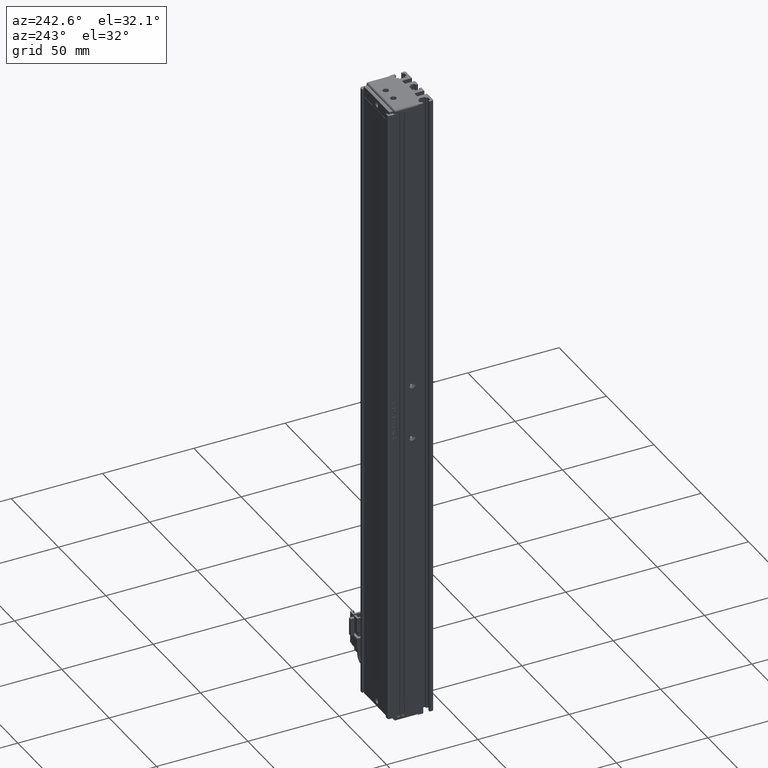
[diagram: clean part render]
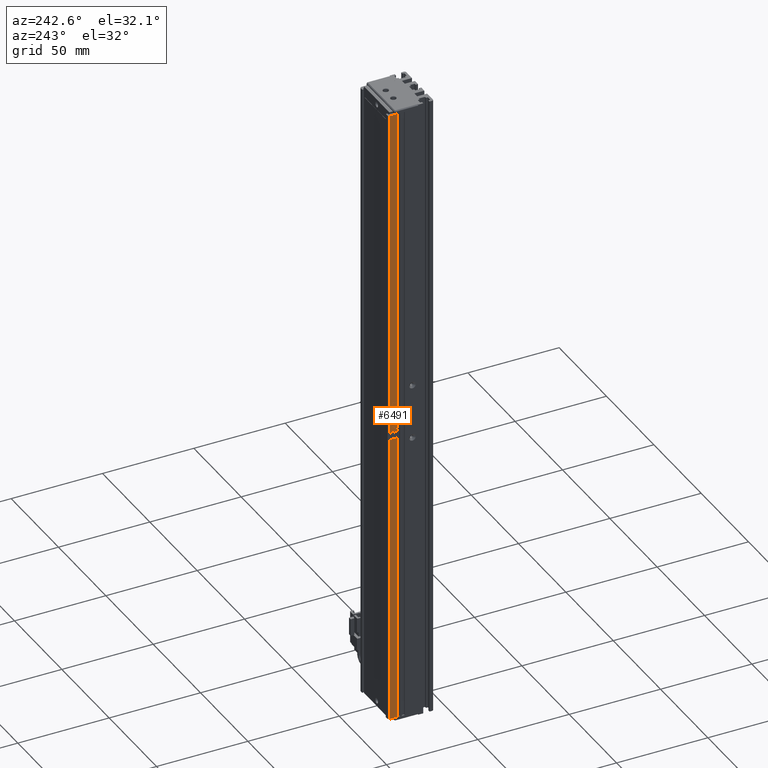
[diagram: same view with one face highlighted and labeled with its STEP entity id]
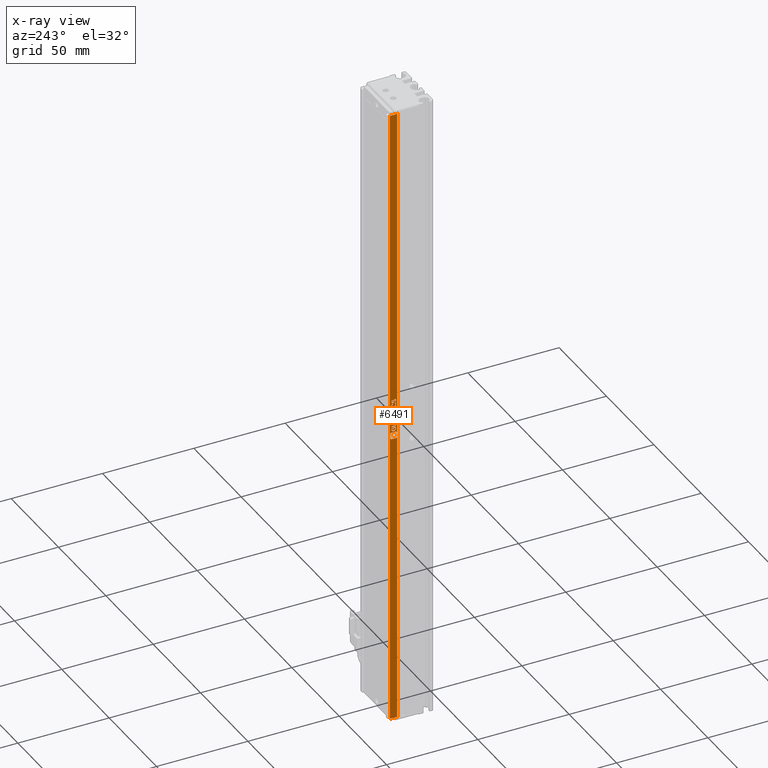
[diagram: x-ray of the same camera — body ghosted, the highlighted face saturated]
A machine part, auxiliary view. The second image highlights one B-rep face of the part: STEP entity #6491.
The next image is the same camera in x-ray: the body ghosted, the highlighted face saturated — about 0% of this face is hidden behind the body in this view.
In plain terms, the highlighted planar face has unit normal (-1, 0, 0).
Its self-contained STEP definition (entity closure, byte-faithful):
#3 = VECTOR ( 'NONE', #12404, 1000.000000000000000 ) ;
#214 = CARTESIAN_POINT ( 'NONE',  ( 25.92537974683541800, 31.46220724971731600, -107.8557179871613700 ) ) ;
#225 = FACE_BOUND ( 'NONE', #51868, .T. ) ;
#308 = CARTESIAN_POINT ( 'NONE',  ( 25.92537974683541800, 34.16508545272805700, -127.7668061041690800 ) ) ;
#389 = ORIENTED_EDGE ( 'NONE', *, *, #17451, .F. ) ;
#580 = CARTESIAN_POINT ( 'NONE',  ( 25.92537974683541800, 30.80372534025560000, -124.7181086063044400 ) ) ;
#938 = CARTESIAN_POINT ( 'NONE',  ( 25.92537974683541800, 32.61337004041497100, -109.7394389173939500 ) ) ;
#1007 = VERTEX_POINT ( 'NONE', #18435 ) ;
#1137 = B_SPLINE_CURVE_WITH_KNOTS ( 'NONE', 3,
 ( #4985, #20729, #36441, #5188 ),
 .UNSPECIFIED., .F., .F.,
 ( 4, 4 ),
 ( 4.000000000000000000, 5.000000000000000000 ),
 .UNSPECIFIED. ) ;
#1148 = DIRECTION ( 'NONE',  ( -0.0000000000000000000, -0.0000000000000000000, -1.000000000000000000 ) ) ;
#1342 = CARTESIAN_POINT ( 'NONE',  ( 25.92537974683541800, 32.24127701715914200, -114.0134383765609100 ) ) ;
#1350 = LINE ( 'NONE', #22538, #41329 ) ;
#1598 = B_SPLINE_CURVE_WITH_KNOTS ( 'NONE', 3,
 ( #22882, #2116, #12844, #49284 ),
 .UNSPECIFIED., .F., .F.,
 ( 4, 4 ),
 ( 11.00000000000000000, 12.00000000000000000 ),
 .UNSPECIFIED. ) ;
#1764 = CARTESIAN_POINT ( 'NONE',  ( 25.92537974683541800, 33.05523050553124200, -113.1673053316716800 ) ) ;
#1838 = ORIENTED_EDGE ( 'NONE', *, *, #6617, .F. ) ;
#1971 = CARTESIAN_POINT ( 'NONE',  ( 25.92537974683541800, 32.59011422646145900, -109.2079354019800900 ) ) ;
#1983 = CARTESIAN_POINT ( 'NONE',  ( 25.92537974683541800, 33.05523050553124200, -113.1673053316716800 ) ) ;
#2070 = B_SPLINE_CURVE_WITH_KNOTS ( 'NONE', 3,
 ( #580, #5796, #21578, #57971 ),
 .UNSPECIFIED., .F., .F.,
 ( 4, 4 ),
 ( 5.000000000000000000, 6.000000000000000000 ),
 .UNSPECIFIED. ) ;
#2106 = LINE ( 'NONE', #16230, #57511 ) ;
#2116 = CARTESIAN_POINT ( 'NONE',  ( 25.92537974683541800, 32.46220724971728800, -105.3787033846735300 ) ) ;
#2162 = B_SPLINE_CURVE_WITH_KNOTS ( 'NONE', 3,
 ( #67158, #30730, #35945, #4728 ),
 .UNSPECIFIED., .F., .F.,
 ( 4, 4 ),
 ( 12.00000000000000000, 13.00000000000000000 ),
 .UNSPECIFIED. ) ;
#2419 = VECTOR ( 'NONE', #61827, 1000.000000000000000 ) ;
#2530 = B_SPLINE_CURVE_WITH_KNOTS ( 'NONE', 3,
 ( #59167, #22745, #33168, #1971 ),
 .UNSPECIFIED., .F., .F.,
 ( 4, 4 ),
 ( 3.000000000000000000, 4.000000000000000000 ),
 .UNSPECIFIED. ) ;
#2617 = B_SPLINE_CURVE_WITH_KNOTS ( 'NONE', 3,
 ( #24840, #30033, #45745, #14572 ),
 .UNSPECIFIED., .F., .F.,
 ( 4, 4 ),
 ( 10.00000000000000000, 11.00000000000000000 ),
 .UNSPECIFIED. ) ;
#2686 = VERTEX_POINT ( 'NONE', #26721 ) ;
#2745 = CARTESIAN_POINT ( 'NONE',  ( 25.92537974683541800, 31.32267236599636100, -122.2466725571991800 ) ) ;
#2767 = LINE ( 'NONE', #23954, #16587 ) ;
#2821 = CARTESIAN_POINT ( 'NONE',  ( 25.92537974683541800, 31.65988166832194800, -119.8277298854846900 ) ) ;
#2989 = CARTESIAN_POINT ( 'NONE',  ( 25.92537974683541800, 32.62499794739170500, -123.4399527086323300 ) ) ;
#3046 = DIRECTION ( 'NONE',  ( 0.0000000000000000000, 1.000000000000000000, 0.0000000000000000000 ) ) ;
#3244 = DIRECTION ( 'NONE',  ( -0.0000000000000000000, -0.0000000000000000000, -1.000000000000000000 ) ) ;
#3458 = VERTEX_POINT ( 'NONE', #35834 ) ;
#3484 = ORIENTED_EDGE ( 'NONE', *, *, #59921, .F. ) ;
#3597 = CARTESIAN_POINT ( 'NONE',  ( 25.92537974683541800, 31.45456798525003000, -107.0855043581726000 ) ) ;
#3638 = VERTEX_POINT ( 'NONE', #11365 ) ;
#3672 = EDGE_CURVE ( 'NONE', #17935, #66972, #54629, .T. ) ;
#3790 = VERTEX_POINT ( 'NONE', #43700 ) ;
#3892 = CARTESIAN_POINT ( 'NONE',  ( 25.92537974683541800, 33.86918399390334100, -118.7754719081997600 ) ) ;
#3909 = CARTESIAN_POINT ( 'NONE',  ( 25.92537974683541800, 33.86918399390334100, -115.0222269109038500 ) ) ;
#3973 = VECTOR ( 'NONE', #15320, 1000.000000000000000 ) ;
#4044 = ORIENTED_EDGE ( 'NONE', *, *, #6840, .F. ) ;
#4158 = DIRECTION ( 'NONE',  ( -0.0000000000000000000, -0.0000000000000000000, 1.000000000000000000 ) ) ;
#4213 = ORIENTED_EDGE ( 'NONE', *, *, #45205, .F. ) ;
#4306 = ORIENTED_EDGE ( 'NONE', *, *, #12677, .F. ) ;
#4333 = CARTESIAN_POINT ( 'NONE',  ( 25.92537974683541800, 33.90406771483355900, -108.6221457859714500 ) ) ;
#4409 = CARTESIAN_POINT ( 'NONE',  ( 25.92537974683541800, 32.29941655204287100, -120.3592334008984300 ) ) ;
#4412 = CARTESIAN_POINT ( 'NONE',  ( 25.92537974683541800, 32.59011422646145900, -109.2079354019800900 ) ) ;
#4431 = EDGE_CURVE ( 'NONE', #49993, #66339, #28313, .T. ) ;
#4728 = CARTESIAN_POINT ( 'NONE',  ( 25.92537974683541800, 32.06685841250799700, -105.3787033846735300 ) ) ;
#4804 = CARTESIAN_POINT ( 'NONE',  ( 25.92537974683541800, 32.60174213343821500, -117.6690630385403600 ) ) ;
#4947 = VERTEX_POINT ( 'NONE', #21109 ) ;
#4985 = CARTESIAN_POINT ( 'NONE',  ( 25.92537974683541800, 32.21802120320565200, -107.6458748286972000 ) ) ;
#5188 = CARTESIAN_POINT ( 'NONE',  ( 25.92537974683541800, 31.65988166832194800, -108.4811236118232200 ) ) ;
#5285 = CARTESIAN_POINT ( 'NONE',  ( 25.92537974683541800, 33.85755608692660700, -115.7852745041975600 ) ) ;
#5450 = CARTESIAN_POINT ( 'NONE',  ( 25.92537974683541800, 31.32267236599636100, -108.1738629303739600 ) ) ;
#5796 = CARTESIAN_POINT ( 'NONE',  ( 25.92537974683541800, 30.80372534025560000, -124.2695141187751200 ) ) ;
#5940 = ORIENTED_EDGE ( 'NONE', *, *, #46298, .F. ) ;
#6062 = CARTESIAN_POINT ( 'NONE',  ( 25.92537974683541800, 33.90406771483355900, -116.5083680682861900 ) ) ;
#6131 = ORIENTED_EDGE ( 'NONE', *, *, #43673, .F. ) ;
#6253 = ORIENTED_EDGE ( 'NONE', *, *, #55150, .F. ) ;
#6311 = ORIENTED_EDGE ( 'NONE', *, *, #50001, .F. ) ;
#6343 = VERTEX_POINT ( 'NONE', #27570 ) ;
#6368 = VECTOR ( 'NONE', #26282, 1000.000000000000000 ) ;
#6385 = B_SPLINE_CURVE_WITH_KNOTS ( 'NONE', 3,
 ( #24911, #56292, #30336, #66794 ),
 .UNSPECIFIED., .F., .F.,
 ( 4, 4 ),
 ( 3.000000000000000000, 4.000000000000000000 ),
 .UNSPECIFIED. ) ;
#6491 = ADVANCED_FACE ( 'NONE', ( #225, #27975, #40215, #26376, #12524, #54055, #66310, #52409, #38580, #24750 ), #65189, .T. ) ;
#6617 = EDGE_CURVE ( 'NONE', #42520, #3458, #2617, .T. ) ;
#6662 = VECTOR ( 'NONE', #66809, 1000.000000000000000 ) ;
#6702 = EDGE_CURVE ( 'NONE', #21654, #39299, #2162, .T. ) ;
#6836 = B_SPLINE_CURVE_WITH_KNOTS ( 'NONE', 3,
 ( #47742, #16525, #52977, #21802 ),
 .UNSPECIFIED., .F., .F.,
 ( 4, 4 ),
 ( 1.000000000000000000, 2.000000000000000000 ),
 .UNSPECIFIED. ) ;
#6840 = EDGE_CURVE ( 'NONE', #21344, #18240, #17852, .T. ) ;
#6891 = ORIENTED_EDGE ( 'NONE', *, *, #28526, .T. ) ;
#6925 = DIRECTION ( 'NONE',  ( -0.0000000000000000000, 1.000000000000000000, -0.0000000000000000000 ) ) ;
#6965 = VECTOR ( 'NONE', #1148, 1000.000000000000000 ) ;
#6982 = ORIENTED_EDGE ( 'NONE', *, *, #23853, .F. ) ;
#7107 = VERTEX_POINT ( 'NONE', #53792 ) ;
#7333 = VECTOR ( 'NONE', #18255, 1000.000000000000000 ) ;
#7350 = LINE ( 'NONE', #52119, #33430 ) ;
#7581 = CARTESIAN_POINT ( 'NONE',  ( 25.92537974683541800, 33.86918399390334100, -120.8799202586595100 ) ) ;
#7580 = CARTESIAN_POINT ( 'NONE',  ( 25.92537974683541800, 31.66752093278923400, -120.9016211780754000 ) ) ;
#7634 = DIRECTION ( 'NONE',  ( -0.0000000000000000000, -0.0000000000000000000, 1.000000000000000000 ) ) ;
#7637 = EDGE_CURVE ( 'NONE', #30368, #66280, #27667, .T. ) ;
#7638 = CARTESIAN_POINT ( 'NONE',  ( 25.92537974683541800, 33.07848631948472500, -108.1014589282104900 ) ) ;
#7884 = DIRECTION ( 'NONE',  ( -0.0000000000000000000, -1.000000000000000000, -0.0000000000000000000 ) ) ;
#8046 = VERTEX_POINT ( 'NONE', #67546 ) ;
#8076 = CARTESIAN_POINT ( 'NONE',  ( 25.92537974683541800, 32.29941655204287100, -119.2961587659606100 ) ) ;
#8155 = VECTOR ( 'NONE', #32034, 1000.000000000000000 ) ;
#8271 = VERTEX_POINT ( 'NONE', #7638 ) ;
#8295 = CARTESIAN_POINT ( 'NONE',  ( 25.92537974683541800, 33.86918399390334100, -112.9177785604439900 ) ) ;
#8299 = B_SPLINE_CURVE_WITH_KNOTS ( 'NONE', 3,
 ( #67617, #31199, #26012, #36444 ),
 .UNSPECIFIED., .F., .F.,
 ( 4, 4 ),
 ( 7.000000000000000000, 8.000000000000000000 ),
 .UNSPECIFIED. ) ;
#8361 = VECTOR ( 'NONE', #50041, 1000.000000000000000 ) ;
#8538 = CARTESIAN_POINT ( 'NONE',  ( 25.92537974683541800, 33.21802120320565200, -107.2770268027372700 ) ) ;
#8689 = EDGE_CURVE ( 'NONE', #3458, #20594, #49331, .T. ) ;
#8747 = B_SPLINE_CURVE_WITH_KNOTS ( 'NONE', 3,
 ( #50342, #13896, #45093, #55559 ),
 .UNSPECIFIED., .F., .F.,
 ( 4, 4 ),
 ( 1.000000000000000000, 2.000000000000000000 ),
 .UNSPECIFIED. ) ;
#8933 = EDGE_CURVE ( 'NONE', #17330, #49993, #21152, .T. ) ;
#8954 = EDGE_LOOP ( 'NONE', ( #57388, #41890, #36538, #48602, #55625, #5940, #48223, #52125, #42533, #33431 ) ) ;
#9224 = ORIENTED_EDGE ( 'NONE', *, *, #66013, .F. ) ;
#9294 = LINE ( 'NONE', #49743, #23202 ) ;
#9396 = ORIENTED_EDGE ( 'NONE', *, *, #13163, .F. ) ;
#9490 = VECTOR ( 'NONE', #4158, 1000.000000000000000 ) ;
#9775 = CARTESIAN_POINT ( 'NONE',  ( 25.92537974683541800, 34.30115331877880200, -124.0383808647334500 ) ) ;
#9806 = CARTESIAN_POINT ( 'NONE',  ( 25.92537974683541800, 32.61337004041497100, -122.9192658508716000 ) ) ;
#10115 = CARTESIAN_POINT ( 'NONE',  ( 25.92537974683541800, 32.03197469157775100, -105.9102745041974900 ) ) ;
#10153 = CARTESIAN_POINT ( 'NONE',  ( 25.92537974683541800, 30.69594479660386800, 58.00000000000000700 ) ) ;
#10154 = CARTESIAN_POINT ( 'NONE',  ( 25.92537974683541800, 32.81104445901963400, -121.2161831034404600 ) ) ;
#10209 = VERTEX_POINT ( 'NONE', #9806 ) ;
#10234 = VECTOR ( 'NONE', #15299, 1000.000000000000000 ) ;
#10366 = CARTESIAN_POINT ( 'NONE',  ( 25.92537974683541800, 31.28396901283250000, -119.0938196637431600 ) ) ;
#10517 = LINE ( 'NONE', #53491, #22789 ) ;
#10590 = CARTESIAN_POINT ( 'NONE',  ( 25.92537974683541800, 32.53197469157775100, -107.0204692040354600 ) ) ;
#10825 = ORIENTED_EDGE ( 'NONE', *, *, #15395, .F. ) ;
#10855 = CARTESIAN_POINT ( 'NONE',  ( 25.92537974683541800, 33.21802120320565200, -107.2770268027372700 ) ) ;
#10971 = CARTESIAN_POINT ( 'NONE',  ( 25.92537974683541800, 33.54360259855448600, -106.3875595231265700 ) ) ;
#11249 = DIRECTION ( 'NONE',  ( -0.0000000000000000000, -0.0000000000000000000, -1.000000000000000000 ) ) ;
#11331 = CARTESIAN_POINT ( 'NONE',  ( 25.92537974683541800, 33.87300362613698500, -117.2459965160958600 ) ) ;
#11365 = CARTESIAN_POINT ( 'NONE',  ( 25.92537974683541800, 32.21802120320565200, -107.6458748286972000 ) ) ;
#11600 = CARTESIAN_POINT ( 'NONE',  ( 25.92537974683541800, 33.86918399390334100, -110.5530543852141800 ) ) ;
#11653 = B_SPLINE_CURVE_WITH_KNOTS ( 'NONE', 3,
 ( #56890, #62158, #30939, #67377 ),
 .UNSPECIFIED., .F., .F.,
 ( 4, 4 ),
 ( 0.0000000000000000000, 1.000000000000000000 ),
 .UNSPECIFIED. ) ;
#11801 = VERTEX_POINT ( 'NONE', #57034 ) ;
#11993 = VECTOR ( 'NONE', #21168, 1000.000000000000000 ) ;
#12134 = VECTOR ( 'NONE', #45763, 1000.000000000000000 ) ;
#12150 = CARTESIAN_POINT ( 'NONE',  ( 25.92537974683541800, 33.54360259855448600, -106.3875595231265700 ) ) ;
#12152 = EDGE_CURVE ( 'NONE', #13263, #30368, #55447, .T. ) ;
#12249 = VERTEX_POINT ( 'NONE', #29659 ) ;
#12252 = ORIENTED_EDGE ( 'NONE', *, *, #17109, .F. ) ;
#12321 = VERTEX_POINT ( 'NONE', #61320 ) ;
#12404 = DIRECTION ( 'NONE',  ( -0.0000000000000000000, 1.000000000000000000, -0.0000000000000000000 ) ) ;
#12436 = VECTOR ( 'NONE', #6925, 1000.000000000000000 ) ;
#12524 = FACE_BOUND ( 'NONE', #35873, .T. ) ;
#12659 = CARTESIAN_POINT ( 'NONE',  ( 25.92537974683541800, 33.86918399390334100, -110.0431841851061300 ) ) ;
#12666 = B_SPLINE_CURVE_WITH_KNOTS ( 'NONE', 3,
 ( #47039, #36558, #10590, #52269 ),
 .UNSPECIFIED., .F., .F.,
 ( 4, 4 ),
 ( 4.000000000000000000, 5.000000000000000000 ),
 .UNSPECIFIED. ) ;
#12677 = EDGE_CURVE ( 'NONE', #15861, #7107, #55903, .T. ) ;
#12844 = CARTESIAN_POINT ( 'NONE',  ( 25.92537974683541800, 32.72566046767293800, -105.6970511402170400 ) ) ;
#12998 = ORIENTED_EDGE ( 'NONE', *, *, #44610, .F. ) ;
#13020 = CARTESIAN_POINT ( 'NONE',  ( 25.92537974683541800, 33.07848631948472500, -107.5915887281024200 ) ) ;
#13088 = CARTESIAN_POINT ( 'NONE',  ( 25.92537974683541800, 32.36137571916022200, -106.0585303181508700 ) ) ;
#13163 = EDGE_CURVE ( 'NONE', #15371, #58585, #25748, .T. ) ;
#13263 = VERTEX_POINT ( 'NONE', #60317 ) ;
#13291 = VECTOR ( 'NONE', #39334, 1000.000000000000000 ) ;
#13343 = CARTESIAN_POINT ( 'NONE',  ( 25.92537974683541800, 31.85755608692657900, -119.2817590904603000 ) ) ;
#13394 = EDGE_LOOP ( 'NONE', ( #45818, #22195, #48049, #47958, #66491, #41365, #30638, #16675, #38552, #27004, #44767, #50690, #53774, #4306 ) ) ;
#13551 = CARTESIAN_POINT ( 'NONE',  ( 25.92537974683541800, 33.52034678460102400, -112.9177785604439900 ) ) ;
#13625 = CARTESIAN_POINT ( 'NONE',  ( 25.92537974683541800, 33.90406771483355900, -106.3983761807795800 ) ) ;
#13868 = EDGE_CURVE ( 'NONE', #40282, #19217, #12666, .T. ) ;
#13896 = CARTESIAN_POINT ( 'NONE',  ( 25.92537974683541800, 31.65589302581247500, -106.7563399449764000 ) ) ;
#13935 = ORIENTED_EDGE ( 'NONE', *, *, #14924, .F. ) ;
#14088 = CARTESIAN_POINT ( 'NONE',  ( 25.92537974683541800, 31.32267236599636100, -106.3333410266419900 ) ) ;
#14288 = ORIENTED_EDGE ( 'NONE', *, *, #16234, .T. ) ;
#14322 = LINE ( 'NONE', #25405, #66473 ) ;
#14419 = VECTOR ( 'NONE', #7884, 1000.000000000000000 ) ;
#14572 = CARTESIAN_POINT ( 'NONE',  ( 25.92537974683541800, 33.21802120320565200, -106.7455232873235100 ) ) ;
#14625 = LINE ( 'NONE', #7581, #26834 ) ;
#14656 = CARTESIAN_POINT ( 'NONE',  ( 25.92537974683541800, 33.17150957529867800, -121.2270673652035500 ) ) ;
#14673 = VERTEX_POINT ( 'NONE', #1342 ) ;
#14859 = CARTESIAN_POINT ( 'NONE',  ( 25.92537974683541800, 31.65988166832194800, -122.2358558995462800 ) ) ;
#14917 = LINE ( 'NONE', #54818, #13291 ) ;
#14924 = EDGE_CURVE ( 'NONE', #45192, #25019, #8747, .T. ) ;
#14946 = CARTESIAN_POINT ( 'NONE',  ( 25.92537974683541800, 32.61337004041497100, -122.9192658508716000 ) ) ;
#15015 = ORIENTED_EDGE ( 'NONE', *, *, #25873, .F. ) ;
#15046 = CARTESIAN_POINT ( 'NONE',  ( 25.92537974683541800, 34.53215067387920800, -124.2695141187751200 ) ) ;
#15171 = DIRECTION ( 'NONE',  ( -0.0000000000000000000, -0.0000000000000000000, -1.000000000000000000 ) ) ;
#15299 = DIRECTION ( 'NONE',  ( -0.0000000000000000000, -0.0000000000000000000, -1.000000000000000000 ) ) ;
#15320 = DIRECTION ( 'NONE',  ( -0.0000000000000000000, 1.000000000000000000, -0.0000000000000000000 ) ) ;
#15371 = VERTEX_POINT ( 'NONE', #36886 ) ;
#15395 = EDGE_CURVE ( 'NONE', #56169, #52926, #10517, .T. ) ;
#15461 = ORIENTED_EDGE ( 'NONE', *, *, #28299, .F. ) ;
#15476 = VERTEX_POINT ( 'NONE', #53939 ) ;
#15511 = CARTESIAN_POINT ( 'NONE',  ( 25.92537974683541800, 33.71645697767113600, -127.7668061041690800 ) ) ;
#15540 = VERTEX_POINT ( 'NONE', #33883 ) ;
#15605 = CARTESIAN_POINT ( 'NONE',  ( 25.92537974683541800, 33.42732352878707000, -121.8490927843490300 ) ) ;
#15786 = CARTESIAN_POINT ( 'NONE',  ( 25.92537974683541800, 31.65988166832194800, -118.7393713132834400 ) ) ;
#15800 = CARTESIAN_POINT ( 'NONE',  ( 25.92537974683541800, 32.46220724971728800, -121.7043523841326300 ) ) ;
#15861 = VERTEX_POINT ( 'NONE', #36371 ) ;
#15949 = CARTESIAN_POINT ( 'NONE',  ( 25.92537974683541800, 31.32267236599636100, -108.6004448665555600 ) ) ;
#16010 = ORIENTED_EDGE ( 'NONE', *, *, #33790, .F. ) ;
#16042 = CARTESIAN_POINT ( 'NONE',  ( 25.92537974683541800, 32.41569562181031500, -106.3549743419476800 ) ) ;
#16088 = CARTESIAN_POINT ( 'NONE',  ( 25.92537974683541800, 32.29941655204287100, -119.2961587659606100 ) ) ;
#16113 = VERTEX_POINT ( 'NONE', #48639 ) ;
#16169 = ORIENTED_EDGE ( 'NONE', *, *, #42761, .F. ) ;
#16230 = CARTESIAN_POINT ( 'NONE',  ( 25.92537974683541800, 33.07848631948472500, -107.5915887281024200 ) ) ;
#16234 = EDGE_CURVE ( 'NONE', #37361, #39013, #27130, .T. ) ;
#16244 = VERTEX_POINT ( 'NONE', #8295 ) ;
#16290 = VECTOR ( 'NONE', #42781, 1000.000000000000000 ) ;
#16397 = EDGE_CURVE ( 'NONE', #66493, #3638, #36852, .T. ) ;
#16465 = VECTOR ( 'NONE', #47081, 1000.000000000000000 ) ;
#16491 = CARTESIAN_POINT ( 'NONE',  ( 25.92537974683541800, 33.85239573418066100, -124.0383808647334500 ) ) ;
#16525 = CARTESIAN_POINT ( 'NONE',  ( 25.92537974683541800, 33.54360259855448600, -108.3365184198276700 ) ) ;
#16550 = ORIENTED_EDGE ( 'NONE', *, *, #62929, .F. ) ;
#16556 = CARTESIAN_POINT ( 'NONE',  ( 25.92537974683541800, 32.60174213343821500, -117.6690630385403600 ) ) ;
#16587 = VECTOR ( 'NONE', #29183, 1000.000000000000000 ) ;
#16641 = EDGE_LOOP ( 'NONE', ( #28108, #31805, #13935, #6982, #15461, #25956, #50080, #389, #41055, #19806, #61030, #1838, #49758, #50070 ) ) ;
#16675 = ORIENTED_EDGE ( 'NONE', *, *, #4431, .F. ) ;
#17109 = EDGE_CURVE ( 'NONE', #62117, #48162, #8299, .T. ) ;
#17150 = CARTESIAN_POINT ( 'NONE',  ( 25.92537974683541800, 32.04360259855453600, -121.7043523841326300 ) ) ;
#17170 = ORIENTED_EDGE ( 'NONE', *, *, #44493, .F. ) ;
#17195 = CARTESIAN_POINT ( 'NONE',  ( 25.92537974683541800, 32.46220724971728800, -121.7043523841326300 ) ) ;
#17330 = VERTEX_POINT ( 'NONE', #38687 ) ;
#17378 = CARTESIAN_POINT ( 'NONE',  ( 25.92537974683541800, 31.74127701715916700, -107.6458748286972000 ) ) ;
#17451 = EDGE_CURVE ( 'NONE', #2686, #33636, #65071, .T. ) ;
#17776 = B_SPLINE_CURVE_WITH_KNOTS ( 'NONE', 3,
 ( #66795, #30337, #46035, #14859 ),
 .UNSPECIFIED., .F., .F.,
 ( 4, 4 ),
 ( 4.000000000000000000, 5.000000000000000000 ),
 .UNSPECIFIED. ) ;
#17852 = B_SPLINE_CURVE_WITH_KNOTS ( 'NONE', 3,
 ( #27045, #58227, #63494, #32246 ),
 .UNSPECIFIED., .F., .F.,
 ( 4, 4 ),
 ( 8.000000000000000000, 9.000000000000000000 ),
 .UNSPECIFIED. ) ;
#17935 = VERTEX_POINT ( 'NONE', #12659 ) ;
#18052 = CARTESIAN_POINT ( 'NONE',  ( 25.92537974683541800, 31.32267236599636100, -119.8385465431374700 ) ) ;
#18240 = VERTEX_POINT ( 'NONE', #938 ) ;
#18255 = DIRECTION ( 'NONE',  ( -0.0000000000000000000, -0.0000000000000000000, 1.000000000000000000 ) ) ;
#18288 = CARTESIAN_POINT ( 'NONE',  ( 25.92537974683541800, 32.61337004041497100, -109.7394389173939500 ) ) ;
#18348 = VERTEX_POINT ( 'NONE', #63194 ) ;
#18427 = CARTESIAN_POINT ( 'NONE',  ( 25.92537974683541800, 7.083797468354437600, 60.00000000000001400 ) ) ;
#18435 = CARTESIAN_POINT ( 'NONE',  ( 25.92537974683541800, 33.12499794739170500, -105.9427920812660600 ) ) ;
#18546 = CARTESIAN_POINT ( 'NONE',  ( 25.92537974683541800, 31.65988166832194800, -119.8277298854846900 ) ) ;
#18621 = EDGE_CURVE ( 'NONE', #36509, #21344, #65522, .T. ) ;
#19084 = ORIENTED_EDGE ( 'NONE', *, *, #62154, .F. ) ;
#19217 = VERTEX_POINT ( 'NONE', #16042 ) ;
#19309 = CARTESIAN_POINT ( 'NONE',  ( 25.92537974683541800, 33.65988166832195100, -121.3862074409200500 ) ) ;
#19372 = CARTESIAN_POINT ( 'NONE',  ( 25.92537974683541800, 32.01635814209154800, -122.8975649314557000 ) ) ;
#19530 = VERTEX_POINT ( 'NONE', #13551 ) ;
#19661 = B_SPLINE_CURVE_WITH_KNOTS ( 'NONE', 3,
 ( #21068, #10366, #15786, #57482 ),
 .UNSPECIFIED., .F., .F.,
 ( 4, 4 ),
 ( 8.000000000000000000, 9.000000000000000000 ),
 .UNSPECIFIED. ) ;
#19806 = ORIENTED_EDGE ( 'NONE', *, *, #34306, .F. ) ;
#19947 = CARTESIAN_POINT ( 'NONE',  ( 25.92537974683541800, 31.79542790953343000, -117.6329624436242500 ) ) ;
#20128 = B_SPLINE_CURVE_WITH_KNOTS ( 'NONE', 3,
 ( #23562, #49530, #28788, #65252 ),
 .UNSPECIFIED., .F., .F.,
 ( 4, 4 ),
 ( 6.000000000000000000, 7.000000000000000000 ),
 .UNSPECIFIED. ) ;
#20177 = CARTESIAN_POINT ( 'NONE',  ( 25.92537974683541800, 33.20240465371947600, -122.8975649314557000 ) ) ;
#20571 = CARTESIAN_POINT ( 'NONE',  ( 25.92537974683541800, 33.90406771483355900, -108.6221457859714500 ) ) ;
#20589 = CARTESIAN_POINT ( 'NONE',  ( 25.92537974683541800, 31.64825376134518800, -106.0838142554143000 ) ) ;
#20594 = VERTEX_POINT ( 'NONE', #50312 ) ;
#20609 = EDGE_CURVE ( 'NONE', #3790, #21654, #60244, .T. ) ;
#20615 = EDGE_CURVE ( 'NONE', #49376, #15861, #56332, .T. ) ;
#20729 = CARTESIAN_POINT ( 'NONE',  ( 25.92537974683541800, 31.83031163046364800, -107.8918185820773600 ) ) ;
#20765 = ORIENTED_EDGE ( 'NONE', *, *, #47715, .F. ) ;
#21024 = CARTESIAN_POINT ( 'NONE',  ( 25.92537974683541800, 32.46220724971728800, -122.3985789931102900 ) ) ;
#21068 = CARTESIAN_POINT ( 'NONE',  ( 25.92537974683541800, 31.32267236599636100, -119.8385465431374700 ) ) ;
#21081 = CARTESIAN_POINT ( 'NONE',  ( 25.92537974683541800, 34.53215067387920800, -127.0870172054482900 ) ) ;
#21109 = CARTESIAN_POINT ( 'NONE',  ( 25.92537974683541800, 34.53215067387920800, -127.0870172054482900 ) ) ;
#21152 = LINE ( 'NONE', #49941, #33341 ) ;
#21168 = DIRECTION ( 'NONE',  ( -0.0000000000000000000, -1.000000000000000000, -0.0000000000000000000 ) ) ;
#21344 = VERTEX_POINT ( 'NONE', #20571 ) ;
#21556 = EDGE_CURVE ( 'NONE', #53923, #4947, #45306, .T. ) ;
#21578 = CARTESIAN_POINT ( 'NONE',  ( 25.92537974683541800, 31.03482462394124000, -124.0383808647334500 ) ) ;
#21613 = CARTESIAN_POINT ( 'NONE',  ( 25.92537974683541800, 31.64825376134518800, -106.4092604425425600 ) ) ;
#21654 = VERTEX_POINT ( 'NONE', #64780 ) ;
#21691 = B_SPLINE_CURVE_WITH_KNOTS ( 'NONE', 3,
 ( #21081, #52272, #308, #36772 ),
 .UNSPECIFIED., .F., .F.,
 ( 4, 4 ),
 ( 1.000000000000000000, 2.000000000000000000 ),
 .UNSPECIFIED. ) ;
#21802 = CARTESIAN_POINT ( 'NONE',  ( 25.92537974683541800, 33.07848631948472500, -108.1014589282104900 ) ) ;
#22061 = CARTESIAN_POINT ( 'NONE',  ( 25.92537974683541800, 31.36918399390333800, -112.1476325355657600 ) ) ;
#22195 = ORIENTED_EDGE ( 'NONE', *, *, #31019, .F. ) ;
#22248 = CARTESIAN_POINT ( 'NONE',  ( 25.92537974683541800, 32.03197469157775100, -105.9102745041974900 ) ) ;
#22470 = CARTESIAN_POINT ( 'NONE',  ( 25.92537974683541800, 31.36918399390333800, -112.1476325355657600 ) ) ;
#22538 = CARTESIAN_POINT ( 'NONE',  ( 25.92537974683541800, 33.86918399390334100, -110.0431841851061100 ) ) ;
#22616 = B_SPLINE_CURVE_WITH_KNOTS ( 'NONE', 3,
 ( #44030, #7580, #49297, #18052 ),
 .UNSPECIFIED., .F., .F.,
 ( 4, 4 ),
 ( 9.000000000000000000, 10.00000000000000000 ),
 .UNSPECIFIED. ) ;
#22745 = CARTESIAN_POINT ( 'NONE',  ( 25.92537974683541800, 31.69077674674269200, -108.9513101991677600 ) ) ;
#22789 = VECTOR ( 'NONE', #58502, 1000.000000000000000 ) ;
#22858 = VERTEX_POINT ( 'NONE', #47816 ) ;
#22882 = CARTESIAN_POINT ( 'NONE',  ( 25.92537974683541800, 32.06685841250799700, -105.3787033846735300 ) ) ;
#22982 = ORIENTED_EDGE ( 'NONE', *, *, #58915, .F. ) ;
#22991 = CARTESIAN_POINT ( 'NONE',  ( 25.92537974683541800, 33.21021292846253900, -109.2007693662851400 ) ) ;
#23006 = DIRECTION ( 'NONE',  ( -0.0000000000000000000, -0.0000000000000000000, 1.000000000000000000 ) ) ;
#23073 = B_SPLINE_CURVE_WITH_KNOTS ( 'NONE', 3,
 ( #8076, #13343, #49773, #18546 ),
 .UNSPECIFIED., .F., .F.,
 ( 4, 4 ),
 ( 4.000000000000000000, 5.000000000000000000 ),
 .UNSPECIFIED. ) ;
#23202 = VECTOR ( 'NONE', #3244, 1000.000000000000000 ) ;
#23294 = CARTESIAN_POINT ( 'NONE',  ( 25.92537974683541800, 31.78778864506611500, -123.4111533576319200 ) ) ;
#23516 = CARTESIAN_POINT ( 'NONE',  ( 25.92537974683541800, 32.62499794739170500, -123.4399527086323300 ) ) ;
#23557 = CARTESIAN_POINT ( 'NONE',  ( 25.92537974683541800, 31.32267236599636100, -122.2466725571991800 ) ) ;
#23562 = CARTESIAN_POINT ( 'NONE',  ( 25.92537974683541800, 32.24127701715914200, -114.0134383765609100 ) ) ;
#23578 = CARTESIAN_POINT ( 'NONE',  ( 25.92537974683541800, 32.23346874241605100, -105.9102745041974900 ) ) ;
#23589 = CARTESIAN_POINT ( 'NONE',  ( 25.92537974683541800, 31.79160827729975800, -109.7033383224776300 ) ) ;
#23723 = DIRECTION ( 'NONE',  ( 0.0000000000000000000, 0.0000000000000000000, 1.000000000000000000 ) ) ;
#23853 = EDGE_CURVE ( 'NONE', #46143, #45192, #24494, .T. ) ;
#23954 = CARTESIAN_POINT ( 'NONE',  ( 25.92537974683541800, 33.85239573418066100, -124.0383808647334500 ) ) ;
#24130 = LINE ( 'NONE', #30812, #10234 ) ;
#24233 = VERTEX_POINT ( 'NONE', #39465 ) ;
#24383 = EDGE_CURVE ( 'NONE', #12249, #16244, #42306, .T. ) ;
#24494 = B_SPLINE_CURVE_WITH_KNOTS ( 'NONE', 3,
 ( #10115, #41323, #20589, #57027 ),
 .UNSPECIFIED., .F., .F.,
 ( 4, 4 ),
 ( 2.000000000000000000, 3.000000000000000000 ),
 .UNSPECIFIED. ) ;
#24750 = FACE_OUTER_BOUND ( 'NONE', #62799, .T. ) ;
#24786 = CARTESIAN_POINT ( 'NONE',  ( 25.92537974683541800, 33.54360259855448600, -108.5896282089028900 ) ) ;
#24840 = CARTESIAN_POINT ( 'NONE',  ( 25.92537974683541800, 32.85755608692657900, -106.3333410266419900 ) ) ;
#24911 = CARTESIAN_POINT ( 'NONE',  ( 25.92537974683541800, 31.65988166832194800, -119.8277298854846900 ) ) ;
#24957 = B_SPLINE_CURVE_WITH_KNOTS ( 'NONE', 3,
 ( #45337, #50599, #19372, #55826 ),
 .UNSPECIFIED., .F., .F.,
 ( 4, 4 ),
 ( 3.000000000000000000, 4.000000000000000000 ),
 .UNSPECIFIED. ) ;
#24967 = VECTOR ( 'NONE', #15171, 1000.000000000000000 ) ;
#24984 = EDGE_CURVE ( 'NONE', #34645, #10209, #24957, .T. ) ;
#25019 = VERTEX_POINT ( 'NONE', #60850 ) ;
#25120 = CARTESIAN_POINT ( 'NONE',  ( 25.92537974683541800, 31.65988166832194800, -122.2358558995462800 ) ) ;
#25128 = CARTESIAN_POINT ( 'NONE',  ( 25.92537974683541800, 33.62100930488225700, -107.7073945690974500 ) ) ;
#25144 = EDGE_CURVE ( 'NONE', #25019, #3790, #51912, .T. ) ;
#25208 = CARTESIAN_POINT ( 'NONE',  ( 25.92537974683541800, 30.80372534025560000, -127.0870172054482900 ) ) ;
#25236 = CARTESIAN_POINT ( 'NONE',  ( 25.92537974683541800, 33.86918399390334100, -115.0222269109038500 ) ) ;
#25405 = CARTESIAN_POINT ( 'NONE',  ( 25.92537974683541800, 33.12499794739170500, -105.4438061429212000 ) ) ;
#25409 = CARTESIAN_POINT ( 'NONE',  ( 25.92537974683541800, 33.86918399390334100, -112.9177785604439900 ) ) ;
#25444 = CARTESIAN_POINT ( 'NONE',  ( 25.92537974683541800, 33.90406771483355900, -106.3983761807795800 ) ) ;
#25446 = CARTESIAN_POINT ( 'NONE',  ( 25.92537974683541800, 33.55523050553124200, -122.2792577383781600 ) ) ;
#25748 = LINE ( 'NONE', #64925, #53399 ) ;
#25873 = EDGE_CURVE ( 'NONE', #62707, #56169, #40351, .T. ) ;
#25886 = CARTESIAN_POINT ( 'NONE',  ( 25.92537974683541800, 31.36918399390333800, -115.0222269109038500 ) ) ;
#25956 = ORIENTED_EDGE ( 'NONE', *, *, #13868, .F. ) ;
#26012 = CARTESIAN_POINT ( 'NONE',  ( 25.92537974683541800, 30.80372534025560000, -127.5357408025155600 ) ) ;
#26282 = DIRECTION ( 'NONE',  ( -0.0000000000000000000, -1.000000000000000000, -0.0000000000000000000 ) ) ;
#26376 = FACE_BOUND ( 'NONE', #51018, .T. ) ;
#26518 = VECTOR ( 'NONE', #33824, 1000.000000000000000 ) ;
#26618 = VERTEX_POINT ( 'NONE', #3892 ) ;
#26721 = CARTESIAN_POINT ( 'NONE',  ( 25.92537974683541800, 33.12499794739170500, -105.4438061429212000 ) ) ;
#26834 = VECTOR ( 'NONE', #33535, 1000.000000000000000 ) ;
#26848 = VERTEX_POINT ( 'NONE', #47800 ) ;
#26928 = B_SPLINE_CURVE_WITH_KNOTS ( 'NONE', 3,
 ( #23516, #23294, #33951, #2745 ),
 .UNSPECIFIED., .F., .F.,
 ( 4, 4 ),
 ( 11.00000000000000000, 12.00000000000000000 ),
 .UNSPECIFIED. ) ;
#26976 = CARTESIAN_POINT ( 'NONE',  ( 25.92537974683541800, 32.85755608692657900, -106.3333410266419900 ) ) ;
#27004 = ORIENTED_EDGE ( 'NONE', *, *, #66412, .F. ) ;
#27035 = VECTOR ( 'NONE', #52034, 1000.000000000000000 ) ;
#27045 = CARTESIAN_POINT ( 'NONE',  ( 25.92537974683541800, 33.90406771483355900, -108.6221457859714500 ) ) ;
#27130 = LINE ( 'NONE', #60242, #40976 ) ;
#27323 = CARTESIAN_POINT ( 'NONE',  ( 25.92537974683541800, 32.42732352878707000, -120.8799202586595100 ) ) ;
#27446 = DIRECTION ( 'NONE',  ( -0.0000000000000000000, -1.000000000000000000, -0.0000000000000000000 ) ) ;
#27570 = CARTESIAN_POINT ( 'NONE',  ( 25.92537974683541800, 34.69594479660387500, -288.0000000000000600 ) ) ;
#27667 = LINE ( 'NONE', #63744, #38248 ) ;
#27788 = VERTEX_POINT ( 'NONE', #45028 ) ;
#27839 = CARTESIAN_POINT ( 'NONE',  ( 25.92537974683541800, 33.12499794739170500, -105.9427920812660600 ) ) ;
#27975 = FACE_BOUND ( 'NONE', #29441, .T. ) ;
#28108 = ORIENTED_EDGE ( 'NONE', *, *, #20609, .F. ) ;
#28214 = CARTESIAN_POINT ( 'NONE',  ( 25.92537974683541800, 33.52798604906828200, -108.9947120379996500 ) ) ;
#28270 = LINE ( 'NONE', #44355, #14419 ) ;
#28284 = B_SPLINE_CURVE_WITH_KNOTS ( 'NONE', 3,
 ( #36383, #62353, #15605, #52088 ),
 .UNSPECIFIED., .F., .F.,
 ( 4, 4 ),
 ( 1.000000000000000000, 2.000000000000000000 ),
 .UNSPECIFIED. ) ;
#28299 = EDGE_CURVE ( 'NONE', #19217, #46143, #30145, .T. ) ;
#28313 = LINE ( 'NONE', #17195, #42125 ) ;
#28433 = LINE ( 'NONE', #41303, #3973 ) ;
#28526 = EDGE_CURVE ( 'NONE', #39013, #6343, #24130, .T. ) ;
#28788 = CARTESIAN_POINT ( 'NONE',  ( 25.92537974683541800, 32.49709097064750600, -113.1529056561717000 ) ) ;
#28999 = CARTESIAN_POINT ( 'NONE',  ( 25.92537974683541800, 33.90406771483355900, -122.2792577383781600 ) ) ;
#29183 = DIRECTION ( 'NONE',  ( -0.0000000000000000000, 1.000000000000000000, -0.0000000000000000000 ) ) ;
#29278 = CARTESIAN_POINT ( 'NONE',  ( 25.92537974683541800, 33.89625944009043900, -106.9624648773722100 ) ) ;
#29441 = EDGE_LOOP ( 'NONE', ( #66584, #35096, #6253, #43579, #6131, #19084, #34673, #12998, #35339, #4044 ) ) ;
#29659 = CARTESIAN_POINT ( 'NONE',  ( 25.92537974683541800, 33.86918399390334100, -110.8567996529265700 ) ) ;
#29785 = CARTESIAN_POINT ( 'NONE',  ( 25.92537974683541800, 33.90406771483355900, -122.2792577383781600 ) ) ;
#30017 = VECTOR ( 'NONE', #50868, 1000.000000000000000 ) ;
#30033 = CARTESIAN_POINT ( 'NONE',  ( 25.92537974683541800, 32.90406771483355900, -106.6226190147436200 ) ) ;
#30145 = B_SPLINE_CURVE_WITH_KNOTS ( 'NONE', 3,
 ( #49547, #13088, #23578, #59997 ),
 .UNSPECIFIED., .F., .F.,
 ( 4, 4 ),
 ( 3.000000000000000000, 4.000000000000000000 ),
 .UNSPECIFIED. ) ;
#30201 = VERTEX_POINT ( 'NONE', #22061 ) ;
#30224 = EDGE_CURVE ( 'NONE', #45574, #39052, #33564, .T. ) ;
#30316 = CARTESIAN_POINT ( 'NONE',  ( 25.92537974683541800, 33.07848631948472500, -107.5915887281024200 ) ) ;
#30336 = CARTESIAN_POINT ( 'NONE',  ( 25.92537974683541800, 31.87300362613698100, -120.3592334008984300 ) ) ;
#30337 = CARTESIAN_POINT ( 'NONE',  ( 25.92537974683541800, 31.77998037032302700, -121.7839900261011400 ) ) ;
#30368 = VERTEX_POINT ( 'NONE', #65577 ) ;
#30470 = VERTEX_POINT ( 'NONE', #24786 ) ;
#30638 = ORIENTED_EDGE ( 'NONE', *, *, #58335, .F. ) ;
#30730 = CARTESIAN_POINT ( 'NONE',  ( 25.92537974683541800, 31.32267236599636100, -105.6897498963012500 ) ) ;
#30761 = CARTESIAN_POINT ( 'NONE',  ( 25.92537974683541800, 34.53215067387920800, -124.7181086063044400 ) ) ;
#30812 = CARTESIAN_POINT ( 'NONE',  ( 25.92537974683541800, 34.69594479660387500, 60.00000000000001400 ) ) ;
#30939 = CARTESIAN_POINT ( 'NONE',  ( 25.92537974683541800, 31.79542790953343000, -115.3839765052791500 ) ) ;
#31019 = EDGE_CURVE ( 'NONE', #18348, #49376, #48254, .T. ) ;
#31037 = CARTESIAN_POINT ( 'NONE',  ( 25.92537974683541800, 31.32267236599636100, -119.8385465431374700 ) ) ;
#31118 = VERTEX_POINT ( 'NONE', #15511 ) ;
#31199 = CARTESIAN_POINT ( 'NONE',  ( 25.92537974683541800, 31.03482462394124000, -127.7668061041690800 ) ) ;
#31805 = ORIENTED_EDGE ( 'NONE', *, *, #25144, .F. ) ;
#31972 = EDGE_CURVE ( 'NONE', #26848, #37361, #63454, .T. ) ;
#32034 = DIRECTION ( 'NONE',  ( -0.0000000000000000000, -1.000000000000000000, -0.0000000000000000000 ) ) ;
#32246 = CARTESIAN_POINT ( 'NONE',  ( 25.92537974683541800, 32.61337004041497100, -109.7394389173939500 ) ) ;
#32266 = EDGE_CURVE ( 'NONE', #33636, #40282, #34486, .T. ) ;
#32318 = VERTEX_POINT ( 'NONE', #55450 ) ;
#32453 = CARTESIAN_POINT ( 'NONE',  ( 25.92537974683541800, 33.90406771483355900, -106.3983761807795800 ) ) ;
#32578 = B_SPLINE_CURVE_WITH_KNOTS ( 'NONE', 3,
 ( #62513, #36539, #5285, #41750 ),
 .UNSPECIFIED., .F., .F.,
 ( 4, 4 ),
 ( 3.000000000000000000, 4.000000000000000000 ),
 .UNSPECIFIED. ) ;
#33002 = EDGE_CURVE ( 'NONE', #62882, #53923, #35838, .T. ) ;
#33168 = CARTESIAN_POINT ( 'NONE',  ( 25.92537974683541800, 32.00091060288117700, -109.1934681223695800 ) ) ;
#33254 = EDGE_CURVE ( 'NONE', #53895, #30470, #38385, .T. ) ;
#33341 = VECTOR ( 'NONE', #55393, 1000.000000000000000 ) ;
#33431 = ORIENTED_EDGE ( 'NONE', *, *, #42438, .F. ) ;
#33430 = VECTOR ( 'NONE', #57120, 1000.000000000000000 ) ;
#33459 = DIRECTION ( 'NONE',  ( -0.0000000000000000000, -1.000000000000000000, -0.0000000000000000000 ) ) ;
#33535 = DIRECTION ( 'NONE',  ( -0.0000000000000000000, -0.0000000000000000000, -1.000000000000000000 ) ) ;
#33564 = B_SPLINE_CURVE_WITH_KNOTS ( 'NONE', 3,
 ( #1983, #53693, #64453, #38445 ),
 .UNSPECIFIED., .F., .F.,
 ( 4, 4 ),
 ( 5.000000000000000000, 6.000000000000000000 ),
 .UNSPECIFIED. ) ;
#33595 = LINE ( 'NONE', #62597, #16465 ) ;
#33636 = VERTEX_POINT ( 'NONE', #32453 ) ;
#33790 = EDGE_CURVE ( 'NONE', #52926, #14673, #66272, .T. ) ;
#33802 = ORIENTED_EDGE ( 'NONE', *, *, #24383, .F. ) ;
#33824 = DIRECTION ( 'NONE',  ( -0.0000000000000000000, -0.0000000000000000000, 1.000000000000000000 ) ) ;
#33883 = CARTESIAN_POINT ( 'NONE',  ( 25.92537974683541800, 31.48348707519337700, -124.0383808647334500 ) ) ;
#33951 = CARTESIAN_POINT ( 'NONE',  ( 25.92537974683541800, 31.35373645469296400, -123.0133031683403000 ) ) ;
#34027 = CARTESIAN_POINT ( 'NONE',  ( 25.92537974683541800, 31.32267236599636100, -108.6004448665555600 ) ) ;
#34058 = VERTEX_POINT ( 'NONE', #4409 ) ;
#34072 = CARTESIAN_POINT ( 'NONE',  ( 25.92537974683541800, 31.48348707519337700, -127.7668061041690800 ) ) ;
#34201 = CARTESIAN_POINT ( 'NONE',  ( 25.92537974683541800, 33.43895143576380500, -123.4111533576319200 ) ) ;
#34306 = EDGE_CURVE ( 'NONE', #20594, #1007, #39747, .T. ) ;
#34344 = CARTESIAN_POINT ( 'NONE',  ( 25.92537974683541800, 33.62881757962534800, -105.5306098205847600 ) ) ;
#34486 = B_SPLINE_CURVE_WITH_KNOTS ( 'NONE', 3,
 ( #25444, #29278, #39751, #8538 ),
 .UNSPECIFIED., .F., .F.,
 ( 4, 4 ),
 ( 5.000000000000000000, 6.000000000000000000 ),
 .UNSPECIFIED. ) ;
#34645 = VERTEX_POINT ( 'NONE', #25120 ) ;
#34673 = ORIENTED_EDGE ( 'NONE', *, *, #16397, .F. ) ;
#34784 = ORIENTED_EDGE ( 'NONE', *, *, #35603, .F. ) ;
#35096 = ORIENTED_EDGE ( 'NONE', *, *, #57146, .F. ) ;
#35114 = VERTEX_POINT ( 'NONE', #66725 ) ;
#35139 = CARTESIAN_POINT ( 'NONE',  ( 25.92537974683541800, 31.36918399390333800, -111.6269456778050100 ) ) ;
#35301 = ORIENTED_EDGE ( 'NONE', *, *, #41048, .F. ) ;
#35339 = ORIENTED_EDGE ( 'NONE', *, *, #63064, .F. ) ;
#35558 = CARTESIAN_POINT ( 'NONE',  ( 25.92537974683541800, 33.89625944009043900, -108.0509586577939600 ) ) ;
#35585 = EDGE_CURVE ( 'NONE', #22858, #35114, #14917, .T. ) ;
#35603 = EDGE_CURVE ( 'NONE', #31118, #62117, #62172, .T. ) ;
#35653 = ORIENTED_EDGE ( 'NONE', *, *, #33002, .F. ) ;
#35658 = CARTESIAN_POINT ( 'NONE',  ( 25.92537974683541800, 31.32267236599636100, -116.5083680682861900 ) ) ;
#35724 = VECTOR ( 'NONE', #54371, 1000.000000000000000 ) ;
#35834 = CARTESIAN_POINT ( 'NONE',  ( 25.92537974683541800, 33.21802120320565200, -106.7455232873235100 ) ) ;
#35838 = B_SPLINE_CURVE_WITH_KNOTS ( 'NONE', 3,
 ( #61952, #9775, #15046, #30761 ),
 .UNSPECIFIED., .F., .F.,
 ( 4, 4 ),
 ( 3.000000000000000000, 4.000000000000000000 ),
 .UNSPECIFIED. ) ;
#35873 = EDGE_LOOP ( 'NONE', ( #39193, #45121, #62146, #17170, #16550, #48038, #6311, #33802 ) ) ;
#35945 = CARTESIAN_POINT ( 'NONE',  ( 25.92537974683541800, 31.57084705501744200, -105.3716049530887800 ) ) ;
#36371 = CARTESIAN_POINT ( 'NONE',  ( 25.92537974683541800, 33.90406771483355900, -122.2792577383781600 ) ) ;
#36383 = CARTESIAN_POINT ( 'NONE',  ( 25.92537974683541800, 33.55523050553124200, -122.2792577383781600 ) ) ;
#36441 = CARTESIAN_POINT ( 'NONE',  ( 25.92537974683541800, 31.64426511883574400, -108.1702799125264200 ) ) ;
#36444 = CARTESIAN_POINT ( 'NONE',  ( 25.92537974683541800, 30.80372534025560000, -127.0870172054482900 ) ) ;
#36509 = VERTEX_POINT ( 'NONE', #13020 ) ;
#36538 = ORIENTED_EDGE ( 'NONE', *, *, #44264, .F. ) ;
#36539 = CARTESIAN_POINT ( 'NONE',  ( 25.92537974683541800, 33.42333488627760100, -115.3983761807793700 ) ) ;
#36558 = CARTESIAN_POINT ( 'NONE',  ( 25.92537974683541800, 32.79941655204287800, -107.3277298854847300 ) ) ;
#36772 = CARTESIAN_POINT ( 'NONE',  ( 25.92537974683541800, 33.71645697767113600, -127.7668061041690800 ) ) ;
#36852 = LINE ( 'NONE', #51110, #64627 ) ;
#36886 = CARTESIAN_POINT ( 'NONE',  ( 25.92537974683541800, 31.36918399390333800, -110.5530543852141800 ) ) ;
#37030 = CARTESIAN_POINT ( 'NONE',  ( 25.92537974683541800, 34.69594479660387500, 58.00000000000000700 ) ) ;
#37334 = VERTEX_POINT ( 'NONE', #56633 ) ;
#37361 = VERTEX_POINT ( 'NONE', #10153 ) ;
#38248 = VECTOR ( 'NONE', #42994, 1000.000000000000000 ) ;
#38385 = B_SPLINE_CURVE_WITH_KNOTS ( 'NONE', 3,
 ( #54164, #22991, #28214, #64684 ),
 .UNSPECIFIED., .F., .F.,
 ( 4, 4 ),
 ( 2.000000000000000000, 3.000000000000000000 ),
 .UNSPECIFIED. ) ;
#38444 = DIRECTION ( 'NONE',  ( -0.0000000000000000000, 1.000000000000000000, -0.0000000000000000000 ) ) ;
#38445 = CARTESIAN_POINT ( 'NONE',  ( 25.92537974683541800, 33.86918399390334100, -114.0134383765609100 ) ) ;
#38481 = EDGE_LOOP ( 'NONE', ( #4213, #22982, #3484, #55453 ) ) ;
#38530 = CARTESIAN_POINT ( 'NONE',  ( 25.92537974683541800, 32.24127701715914200, -114.5124243149061000 ) ) ;
#38552 = ORIENTED_EDGE ( 'NONE', *, *, #8933, .F. ) ;
#38580 = FACE_BOUND ( 'NONE', #13394, .T. ) ;
#38657 = CARTESIAN_POINT ( 'NONE',  ( 25.92537974683541800, 30.69594479660386800, 60.00000000000001400 ) ) ;
#38687 = CARTESIAN_POINT ( 'NONE',  ( 25.92537974683541800, 32.81104445901963400, -122.3985789931102900 ) ) ;
#38859 = CARTESIAN_POINT ( 'NONE',  ( 25.92537974683541800, 32.24127701715914200, -114.0134383765609100 ) ) ;
#39013 = VERTEX_POINT ( 'NONE', #37030 ) ;
#39052 = VERTEX_POINT ( 'NONE', #47948 ) ;
#39193 = ORIENTED_EDGE ( 'NONE', *, *, #49973, .F. ) ;
#39299 = VERTEX_POINT ( 'NONE', #65299 ) ;
#39334 = DIRECTION ( 'NONE',  ( -0.0000000000000000000, 1.000000000000000000, -0.0000000000000000000 ) ) ;
#39384 = ORIENTED_EDGE ( 'NONE', *, *, #30224, .F. ) ;
#39442 = EDGE_CURVE ( 'NONE', #1007, #2686, #14322, .T. ) ;
#39465 = CARTESIAN_POINT ( 'NONE',  ( 25.92537974683541800, 32.29941655204287100, -119.2961587659606100 ) ) ;
#39592 = CARTESIAN_POINT ( 'NONE',  ( 25.92537974683541800, 33.12499794739170500, -105.4438061429212000 ) ) ;
#39747 = B_SPLINE_CURVE_WITH_KNOTS ( 'NONE', 3,
 ( #12150, #43315, #59050, #27839 ),
 .UNSPECIFIED., .F., .F.,
 ( 4, 4 ),
 ( 8.000000000000000000, 9.000000000000000000 ),
 .UNSPECIFIED. ) ;
#39751 = CARTESIAN_POINT ( 'NONE',  ( 25.92537974683541800, 33.66752093278923800, -107.2553258833213800 ) ) ;
#39977 = AXIS2_PLACEMENT_3D ( 'NONE', #18427, #54889, #23723 ) ;
#40047 = CARTESIAN_POINT ( 'NONE',  ( 25.92537974683541800, 31.78778864506611500, -107.3313129033319200 ) ) ;
#40215 = FACE_BOUND ( 'NONE', #16641, .T. ) ;
#40282 = VERTEX_POINT ( 'NONE', #10855 ) ;
#40351 = LINE ( 'NONE', #54563, #26518 ) ;
#40675 = ORIENTED_EDGE ( 'NONE', *, *, #31972, .T. ) ;
#40783 = EDGE_CURVE ( 'NONE', #61067, #62707, #40888, .T. ) ;
#40888 = LINE ( 'NONE', #25886, #27035 ) ;
#40976 = VECTOR ( 'NONE', #3046, 1000.000000000000000 ) ;
#41003 = EDGE_CURVE ( 'NONE', #49443, #26618, #53835, .T. ) ;
#41048 = EDGE_CURVE ( 'NONE', #48162, #27788, #47284, .T. ) ;
#41055 = ORIENTED_EDGE ( 'NONE', *, *, #39442, .F. ) ;
#41303 = CARTESIAN_POINT ( 'NONE',  ( 25.92537974683541800, 33.86918399390334100, -110.8567996529265500 ) ) ;
#41323 = CARTESIAN_POINT ( 'NONE',  ( 25.92537974683541800, 31.77616073808938400, -105.9175757481129500 ) ) ;
#41329 = VECTOR ( 'NONE', #38444, 1000.000000000000000 ) ;
#41360 = CARTESIAN_POINT ( 'NONE',  ( 25.92537974683541800, 31.36918399390333800, -115.0222269109038500 ) ) ;
#41365 = ORIENTED_EDGE ( 'NONE', *, *, #46875, .F. ) ;
#41750 = CARTESIAN_POINT ( 'NONE',  ( 25.92537974683541800, 33.90406771483355900, -116.5083680682861900 ) ) ;
#41802 = CARTESIAN_POINT ( 'NONE',  ( 25.92537974683541800, 32.45057934274056100, -118.7754719081997600 ) ) ;
#41890 = ORIENTED_EDGE ( 'NONE', *, *, #59633, .F. ) ;
#42125 = VECTOR ( 'NONE', #48416, 1000.000000000000000 ) ;
#42156 = CARTESIAN_POINT ( 'NONE',  ( 25.92537974683541800, 33.54360259855448600, -106.6335032765068300 ) ) ;
#42306 = LINE ( 'NONE', #25409, #2419 ) ;
#42438 = EDGE_CURVE ( 'NONE', #63347, #49443, #19661, .T. ) ;
#42472 = ORIENTED_EDGE ( 'NONE', *, *, #65520, .F. ) ;
#42520 = VERTEX_POINT ( 'NONE', #26976 ) ;
#42533 = ORIENTED_EDGE ( 'NONE', *, *, #41003, .F. ) ;
#42647 = ORIENTED_EDGE ( 'NONE', *, *, #43235, .F. ) ;
#42761 = EDGE_CURVE ( 'NONE', #14673, #45574, #20128, .T. ) ;
#42781 = DIRECTION ( 'NONE',  ( -0.0000000000000000000, -0.0000000000000000000, -1.000000000000000000 ) ) ;
#42994 = DIRECTION ( 'NONE',  ( -0.0000000000000000000, 1.000000000000000000, -0.0000000000000000000 ) ) ;
#43235 = EDGE_CURVE ( 'NONE', #15540, #62882, #2767, .T. ) ;
#43315 = CARTESIAN_POINT ( 'NONE',  ( 25.92537974683541800, 33.53579432381139500, -106.1706179330780800 ) ) ;
#43391 = CARTESIAN_POINT ( 'NONE',  ( 25.92537974683541800, 33.86918399390334100, -120.3592334008984300 ) ) ;
#43579 = ORIENTED_EDGE ( 'NONE', *, *, #33254, .F. ) ;
#43673 = EDGE_CURVE ( 'NONE', #66171, #53895, #2530, .T. ) ;
#43700 = CARTESIAN_POINT ( 'NONE',  ( 25.92537974683541800, 31.78778864506611500, -107.3313129033319200 ) ) ;
#43880 = LINE ( 'NONE', #35139, #30017 ) ;
#43975 = B_SPLINE_CURVE_WITH_KNOTS ( 'NONE', 3,
 ( #6062, #11331, #47773, #16556 ),
 .UNSPECIFIED., .F., .F.,
 ( 4, 4 ),
 ( 2.000000000000000000, 3.000000000000000000 ),
 .UNSPECIFIED. ) ;
#44030 = CARTESIAN_POINT ( 'NONE',  ( 25.92537974683541800, 32.42732352878707000, -120.8799202586595100 ) ) ;
#44264 = EDGE_CURVE ( 'NONE', #32318, #16113, #14625, .T. ) ;
#44355 = CARTESIAN_POINT ( 'NONE',  ( 25.92537974683541800, 31.36918399390333800, -110.5530543852141800 ) ) ;
#44493 = EDGE_CURVE ( 'NONE', #30201, #22858, #43880, .T. ) ;
#44610 = EDGE_CURVE ( 'NONE', #52493, #66493, #49242, .T. ) ;
#44767 = ORIENTED_EDGE ( 'NONE', *, *, #7637, .F. ) ;
#44831 = CARTESIAN_POINT ( 'NONE',  ( 25.92537974683541800, 33.88845116534738400, -105.8488899720179700 ) ) ;
#44988 = EDGE_LOOP ( 'NONE', ( #16169, #16010, #10825, #15015, #55634, #45665, #39384 ) ) ;
#45028 = CARTESIAN_POINT ( 'NONE',  ( 25.92537974683541800, 30.80372534025560000, -124.7181086063044400 ) ) ;
#45093 = CARTESIAN_POINT ( 'NONE',  ( 25.92537974683541800, 31.84974781218349100, -107.0638034387567100 ) ) ;
#45121 = ORIENTED_EDGE ( 'NONE', *, *, #50955, .F. ) ;
#45192 = VERTEX_POINT ( 'NONE', #21613 ) ;
#45205 = EDGE_CURVE ( 'NONE', #8046, #54458, #43975, .T. ) ;
#45284 = CARTESIAN_POINT ( 'NONE',  ( 25.92537974683541800, 31.29941655204287400, -106.7528245312391800 ) ) ;
#45306 = LINE ( 'NONE', #63614, #6965 ) ;
#45337 = CARTESIAN_POINT ( 'NONE',  ( 25.92537974683541800, 31.65988166832194800, -122.2358558995462800 ) ) ;
#45361 = VERTEX_POINT ( 'NONE', #64674 ) ;
#45514 = VERTEX_POINT ( 'NONE', #27323 ) ;
#45574 = VERTEX_POINT ( 'NONE', #1764 ) ;
#45665 = ORIENTED_EDGE ( 'NONE', *, *, #66256, .F. ) ;
#45745 = CARTESIAN_POINT ( 'NONE',  ( 25.92537974683541800, 33.02416641683463900, -106.7601257751547600 ) ) ;
#45763 = DIRECTION ( 'NONE',  ( 0.0000000000000000000, 1.000000000000000000, 0.0000000000000000000 ) ) ;
#45806 = CARTESIAN_POINT ( 'NONE',  ( 25.92537974683541800, 31.36918399390333800, -114.5124243149061000 ) ) ;
#45818 = ORIENTED_EDGE ( 'NONE', *, *, #20615, .F. ) ;
#45907 = CARTESIAN_POINT ( 'NONE',  ( 25.92537974683541800, 31.65988166832194800, -108.4811236118232200 ) ) ;
#45962 = EDGE_CURVE ( 'NONE', #11801, #18348, #28284, .T. ) ;
#46035 = CARTESIAN_POINT ( 'NONE',  ( 25.92537974683541800, 31.65207339357886000, -121.9611127951655800 ) ) ;
#46143 = VERTEX_POINT ( 'NONE', #22248 ) ;
#46168 = EDGE_CURVE ( 'NONE', #34058, #32318, #66236, .T. ) ;
#46298 = EDGE_CURVE ( 'NONE', #24233, #66630, #23073, .T. ) ;
#46875 = EDGE_CURVE ( 'NONE', #58989, #34645, #17776, .T. ) ;
#47039 = CARTESIAN_POINT ( 'NONE',  ( 25.92537974683541800, 33.21802120320565200, -107.2770268027372700 ) ) ;
#47081 = DIRECTION ( 'NONE',  ( -0.0000000000000000000, -1.000000000000000000, -0.0000000000000000000 ) ) ;
#47284 = LINE ( 'NONE', #49519, #7333 ) ;
#47715 = EDGE_CURVE ( 'NONE', #27788, #15540, #2070, .T. ) ;
#47742 = CARTESIAN_POINT ( 'NONE',  ( 25.92537974683541800, 33.54360259855448600, -108.5896282089028900 ) ) ;
#47773 = CARTESIAN_POINT ( 'NONE',  ( 25.92537974683541800, 33.43895143576380500, -117.6329624436242500 ) ) ;
#47800 = CARTESIAN_POINT ( 'NONE',  ( 25.92537974683541800, 30.69594479660386800, -288.0000000000000600 ) ) ;
#47816 = CARTESIAN_POINT ( 'NONE',  ( 25.92537974683541800, 31.36918399390333800, -111.6269456778050100 ) ) ;
#47862 = B_SPLINE_CURVE_WITH_KNOTS ( 'NONE', 3,
 ( #14946, #20177, #56625, #25446 ),
 .UNSPECIFIED., .F., .F.,
 ( 4, 4 ),
 ( 2.000000000000000000, 3.000000000000000000 ),
 .UNSPECIFIED. ) ;
#47948 = CARTESIAN_POINT ( 'NONE',  ( 25.92537974683541800, 33.86918399390334100, -114.0134383765609100 ) ) ;
#47958 = ORIENTED_EDGE ( 'NONE', *, *, #64471, .F. ) ;
#47963 = LINE ( 'NONE', #57217, #6368 ) ;
#48038 = ORIENTED_EDGE ( 'NONE', *, *, #51616, .F. ) ;
#48049 = ORIENTED_EDGE ( 'NONE', *, *, #45962, .F. ) ;
#48162 = VERTEX_POINT ( 'NONE', #25208 ) ;
#48223 = ORIENTED_EDGE ( 'NONE', *, *, #51690, .F. ) ;
#48254 = LINE ( 'NONE', #14656, #6662 ) ;
#48416 = DIRECTION ( 'NONE',  ( -0.0000000000000000000, -0.0000000000000000000, 1.000000000000000000 ) ) ;
#48602 = ORIENTED_EDGE ( 'NONE', *, *, #46168, .F. ) ;
#48639 = CARTESIAN_POINT ( 'NONE',  ( 25.92537974683541800, 33.86918399390334100, -120.8799202586595100 ) ) ;
#49242 = B_SPLINE_CURVE_WITH_KNOTS ( 'NONE', 3,
 ( #15949, #5450, #214, #52401 ),
 .UNSPECIFIED., .F., .F.,
 ( 4, 4 ),
 ( 6.000000000000000000, 7.000000000000000000 ),
 .UNSPECIFIED. ) ;
#49284 = CARTESIAN_POINT ( 'NONE',  ( 25.92537974683541800, 32.85755608692657900, -106.3333410266419900 ) ) ;
#49297 = CARTESIAN_POINT ( 'NONE',  ( 25.92537974683541800, 31.29941655204287400, -120.5544740715310300 ) ) ;
#49331 = B_SPLINE_CURVE_WITH_KNOTS ( 'NONE', 3,
 ( #62916, #52433, #42156, #10971 ),
 .UNSPECIFIED., .F., .F.,
 ( 4, 4 ),
 ( 9.000000000000000000, 10.00000000000000000 ),
 .UNSPECIFIED. ) ;
#49376 = VERTEX_POINT ( 'NONE', #62128 ) ;
#49443 = VERTEX_POINT ( 'NONE', #41802 ) ;
#49456 = LINE ( 'NONE', #60334, #9490 ) ;
#49519 = CARTESIAN_POINT ( 'NONE',  ( 25.92537974683541800, 30.80372534025560000, -124.7181086063044400 ) ) ;
#49530 = CARTESIAN_POINT ( 'NONE',  ( 25.92537974683541800, 32.22566046767296700, -113.4349500044679600 ) ) ;
#49547 = CARTESIAN_POINT ( 'NONE',  ( 25.92537974683541800, 32.41569562181031500, -106.3549743419476800 ) ) ;
#49743 = CARTESIAN_POINT ( 'NONE',  ( 25.92537974683541800, 33.86918399390334100, -119.2961587659606100 ) ) ;
#49758 = ORIENTED_EDGE ( 'NONE', *, *, #55941, .F. ) ;
#49773 = CARTESIAN_POINT ( 'NONE',  ( 25.92537974683541800, 31.64426511883574400, -119.4588818595246400 ) ) ;
#49941 = CARTESIAN_POINT ( 'NONE',  ( 25.92537974683541800, 32.46220724971728800, -122.3985789931102900 ) ) ;
#49973 = EDGE_CURVE ( 'NONE', #12321, #12249, #28433, .T. ) ;
#49993 = VERTEX_POINT ( 'NONE', #21024 ) ;
#50001 = EDGE_CURVE ( 'NONE', #16244, #19530, #47963, .T. ) ;
#50015 = LINE ( 'NONE', #22470, #63870 ) ;
#50041 = DIRECTION ( 'NONE',  ( -0.0000000000000000000, -1.000000000000000000, -0.0000000000000000000 ) ) ;
#50070 = ORIENTED_EDGE ( 'NONE', *, *, #6702, .F. ) ;
#50080 = ORIENTED_EDGE ( 'NONE', *, *, #32266, .F. ) ;
#50312 = CARTESIAN_POINT ( 'NONE',  ( 25.92537974683541800, 33.54360259855448600, -106.3875595231265700 ) ) ;
#50342 = CARTESIAN_POINT ( 'NONE',  ( 25.92537974683541800, 31.64825376134518800, -106.4092604425425600 ) ) ;
#50599 = CARTESIAN_POINT ( 'NONE',  ( 25.92537974683541800, 31.69858502148583700, -122.6697390796439000 ) ) ;
#50690 = ORIENTED_EDGE ( 'NONE', *, *, #12152, .F. ) ;
#50809 = CARTESIAN_POINT ( 'NONE',  ( 25.92537974683541800, 35.69594479660387500, -288.0000000000000600 ) ) ;
#50868 = DIRECTION ( 'NONE',  ( -0.0000000000000000000, -0.0000000000000000000, 1.000000000000000000 ) ) ;
#50955 = EDGE_CURVE ( 'NONE', #35114, #12321, #49456, .T. ) ;
#51018 = EDGE_LOOP ( 'NONE', ( #12252, #34784, #55053, #65206, #35653, #42647, #20765, #35301 ) ) ;
#51110 = CARTESIAN_POINT ( 'NONE',  ( 25.92537974683541800, 32.21802120320565200, -107.6458748286972000 ) ) ;
#51616 = EDGE_CURVE ( 'NONE', #19530, #15476, #7350, .T. ) ;
#51690 = EDGE_CURVE ( 'NONE', #45361, #24233, #61962, .T. ) ;
#51868 = EDGE_LOOP ( 'NONE', ( #64373, #9396, #9224, #62869 ) ) ;
#51912 = LINE ( 'NONE', #52356, #11993 ) ;
#52034 = DIRECTION ( 'NONE',  ( -0.0000000000000000000, -1.000000000000000000, -0.0000000000000000000 ) ) ;
#52088 = CARTESIAN_POINT ( 'NONE',  ( 25.92537974683541800, 33.17150957529867800, -121.7693875382700000 ) ) ;
#52119 = CARTESIAN_POINT ( 'NONE',  ( 25.92537974683541800, 33.52034678460102400, -112.1476325355657600 ) ) ;
#52125 = ORIENTED_EDGE ( 'NONE', *, *, #66660, .F. ) ;
#52269 = CARTESIAN_POINT ( 'NONE',  ( 25.92537974683541800, 32.41569562181031500, -106.3549743419476800 ) ) ;
#52272 = CARTESIAN_POINT ( 'NONE',  ( 25.92537974683541800, 34.53215067387920800, -127.5357408025155600 ) ) ;
#52356 = CARTESIAN_POINT ( 'NONE',  ( 25.92537974683541800, 31.78778864506611500, -107.3313129033319200 ) ) ;
#52401 = CARTESIAN_POINT ( 'NONE',  ( 25.92537974683541800, 31.74127701715916700, -107.6458748286972000 ) ) ;
#52409 = FACE_BOUND ( 'NONE', #8954, .T. ) ;
#52433 = CARTESIAN_POINT ( 'NONE',  ( 25.92537974683541800, 33.43496279325432900, -106.7528245312391800 ) ) ;
#52493 = VERTEX_POINT ( 'NONE', #54746 ) ;
#52616 = LINE ( 'NONE', #25236, #24967 ) ;
#52924 = CARTESIAN_POINT ( 'NONE',  ( 25.92537974683541800, 32.81104445901963400, -122.3985789931102900 ) ) ;
#52926 = VERTEX_POINT ( 'NONE', #38530 ) ;
#52977 = CARTESIAN_POINT ( 'NONE',  ( 25.92537974683541800, 33.38845116534735500, -108.1738629303739600 ) ) ;
#53094 = B_SPLINE_CURVE_WITH_KNOTS ( 'NONE', 3,
 ( #56381, #19947, #66872, #35658 ),
 .UNSPECIFIED., .F., .F.,
 ( 4, 4 ),
 ( 1.000000000000000000, 2.000000000000000000 ),
 .UNSPECIFIED. ) ;
#53399 = VECTOR ( 'NONE', #23006, 1000.000000000000000 ) ;
#53491 = CARTESIAN_POINT ( 'NONE',  ( 25.92537974683541800, 32.24127701715914200, -114.5124243149061000 ) ) ;
#53693 = CARTESIAN_POINT ( 'NONE',  ( 25.92537974683541800, 33.59775349092874600, -113.1602069000873700 ) ) ;
#53774 = ORIENTED_EDGE ( 'NONE', *, *, #65383, .F. ) ;
#53792 = CARTESIAN_POINT ( 'NONE',  ( 25.92537974683541800, 32.62499794739170500, -123.4399527086323300 ) ) ;
#53835 = LINE ( 'NONE', #54282, #3 ) ;
#53895 = VERTEX_POINT ( 'NONE', #4412 ) ;
#53923 = VERTEX_POINT ( 'NONE', #66845 ) ;
#53939 = CARTESIAN_POINT ( 'NONE',  ( 25.92537974683541800, 33.52034678460102400, -112.1476325355657600 ) ) ;
#54055 = FACE_BOUND ( 'NONE', #44988, .T. ) ;
#54128 = CARTESIAN_POINT ( 'NONE',  ( 25.92537974683541800, 31.36918399390333800, -110.0431841851061100 ) ) ;
#54164 = CARTESIAN_POINT ( 'NONE',  ( 25.92537974683541800, 32.59011422646145900, -109.2079354019800900 ) ) ;
#54217 = EDGE_CURVE ( 'NONE', #45514, #63347, #22616, .T. ) ;
#54282 = CARTESIAN_POINT ( 'NONE',  ( 25.92537974683541800, 33.86918399390334100, -118.7754719081997600 ) ) ;
#54371 = DIRECTION ( 'NONE',  ( 0.0000000000000000000, 0.0000000000000000000, 1.000000000000000000 ) ) ;
#54458 = VERTEX_POINT ( 'NONE', #4804 ) ;
#54563 = CARTESIAN_POINT ( 'NONE',  ( 25.92537974683541800, 31.36918399390333800, -114.5124243149061000 ) ) ;
#54629 = LINE ( 'NONE', #11600, #16290 ) ;
#54726 = CARTESIAN_POINT ( 'NONE',  ( 25.92537974683541800, 31.32267236599636100, -121.7043523841326300 ) ) ;
#54746 = CARTESIAN_POINT ( 'NONE',  ( 25.92537974683541800, 31.32267236599636100, -108.6004448665555600 ) ) ;
#54818 = CARTESIAN_POINT ( 'NONE',  ( 25.92537974683541800, 33.52034678460102400, -111.6269456778050100 ) ) ;
#54889 = DIRECTION ( 'NONE',  ( -1.000000000000000000, 0.0000000000000000000, 0.0000000000000000000 ) ) ;
#55053 = ORIENTED_EDGE ( 'NONE', *, *, #66350, .F. ) ;
#55150 = EDGE_CURVE ( 'NONE', #30470, #8271, #6836, .T. ) ;
#55393 = DIRECTION ( 'NONE',  ( -0.0000000000000000000, -1.000000000000000000, -0.0000000000000000000 ) ) ;
#55447 = B_SPLINE_CURVE_WITH_KNOTS ( 'NONE', 3,
 ( #23557, #54726, #59971, #65244 ),
 .UNSPECIFIED., .F., .F.,
 ( 4, 4 ),
 ( 10.00000000000000000, 11.00000000000000000 ),
 .UNSPECIFIED. ) ;
#55450 = CARTESIAN_POINT ( 'NONE',  ( 25.92537974683541800, 33.86918399390334100, -120.3592334008984300 ) ) ;
#55453 = ORIENTED_EDGE ( 'NONE', *, *, #64449, .F. ) ;
#55559 = CARTESIAN_POINT ( 'NONE',  ( 25.92537974683541800, 32.22964911018240700, -107.3313129033319200 ) ) ;
#55625 = ORIENTED_EDGE ( 'NONE', *, *, #61146, .F. ) ;
#55634 = ORIENTED_EDGE ( 'NONE', *, *, #40783, .F. ) ;
#55761 = CARTESIAN_POINT ( 'NONE',  ( 25.92537974683541800, 33.17150957529867800, -121.2270673652035500 ) ) ;
#55826 = CARTESIAN_POINT ( 'NONE',  ( 25.92537974683541800, 32.61337004041497100, -122.9192658508716000 ) ) ;
#55903 = B_SPLINE_CURVE_WITH_KNOTS ( 'NONE', 3,
 ( #28999, #60183, #34201, #2989 ),
 .UNSPECIFIED., .F., .F.,
 ( 4, 4 ),
 ( 12.00000000000000000, 13.00000000000000000 ),
 .UNSPECIFIED. ) ;
#55941 = EDGE_CURVE ( 'NONE', #39299, #42520, #1598, .T. ) ;
#56129 = DIRECTION ( 'NONE',  ( -0.0000000000000000000, 1.000000000000000000, -0.0000000000000000000 ) ) ;
#56169 = VERTEX_POINT ( 'NONE', #45806 ) ;
#56193 = CARTESIAN_POINT ( 'NONE',  ( 25.92537974683541800, 32.60174213343821500, -115.3476730980320000 ) ) ;
#56292 = CARTESIAN_POINT ( 'NONE',  ( 25.92537974683541800, 31.65988166832194800, -120.1821106318340900 ) ) ;
#56332 = B_SPLINE_CURVE_WITH_KNOTS ( 'NONE', 3,
 ( #55761, #19309, #61008, #29785 ),
 .UNSPECIFIED., .F., .F.,
 ( 4, 4 ),
 ( 13.00000000000000000, 14.00000000000000000 ),
 .UNSPECIFIED. ) ;
#56381 = CARTESIAN_POINT ( 'NONE',  ( 25.92537974683541800, 32.60174213343821500, -117.6690630385403600 ) ) ;
#56625 = CARTESIAN_POINT ( 'NONE',  ( 25.92537974683541800, 33.51635814209154800, -122.6843415674749300 ) ) ;
#56633 = CARTESIAN_POINT ( 'NONE',  ( 25.92537974683541800, 31.32267236599636100, -116.5083680682861900 ) ) ;
#56890 = CARTESIAN_POINT ( 'NONE',  ( 25.92537974683541800, 31.32267236599636100, -116.5083680682861900 ) ) ;
#57027 = CARTESIAN_POINT ( 'NONE',  ( 25.92537974683541800, 31.64825376134518800, -106.4092604425425600 ) ) ;
#57034 = CARTESIAN_POINT ( 'NONE',  ( 25.92537974683541800, 33.55523050553124200, -122.2792577383781600 ) ) ;
#57120 = DIRECTION ( 'NONE',  ( -0.0000000000000000000, -0.0000000000000000000, 1.000000000000000000 ) ) ;
#57146 = EDGE_CURVE ( 'NONE', #8271, #36509, #2106, .T. ) ;
#57217 = CARTESIAN_POINT ( 'NONE',  ( 25.92537974683541800, 33.52034678460102400, -112.9177785604439900 ) ) ;
#57388 = ORIENTED_EDGE ( 'NONE', *, *, #54217, .F. ) ;
#57482 = CARTESIAN_POINT ( 'NONE',  ( 25.92537974683541800, 32.45057934274056100, -118.7754719081997600 ) ) ;
#57511 = VECTOR ( 'NONE', #57924, 1000.000000000000000 ) ;
#57677 = VECTOR ( 'NONE', #33459, 1000.000000000000000 ) ;
#57924 = DIRECTION ( 'NONE',  ( -0.0000000000000000000, -0.0000000000000000000, 1.000000000000000000 ) ) ;
#57971 = CARTESIAN_POINT ( 'NONE',  ( 25.92537974683541800, 31.48348707519337700, -124.0383808647334500 ) ) ;
#58227 = CARTESIAN_POINT ( 'NONE',  ( 25.92537974683541800, 33.85755608692660700, -109.3309748827805900 ) ) ;
#58332 = B_SPLINE_CURVE_WITH_KNOTS ( 'NONE', 3,
 ( #18288, #23589, #65280, #34027 ),
 .UNSPECIFIED., .F., .F.,
 ( 4, 4 ),
 ( 7.000000000000000000, 8.000000000000000000 ),
 .UNSPECIFIED. ) ;
#58335 = EDGE_CURVE ( 'NONE', #66339, #58989, #33595, .T. ) ;
#58502 = DIRECTION ( 'NONE',  ( -0.0000000000000000000, 1.000000000000000000, -0.0000000000000000000 ) ) ;
#58585 = VERTEX_POINT ( 'NONE', #54128 ) ;
#58915 = EDGE_CURVE ( 'NONE', #62640, #8046, #32578, .T. ) ;
#58989 = VERTEX_POINT ( 'NONE', #17150 ) ;
#59050 = CARTESIAN_POINT ( 'NONE',  ( 25.92537974683541800, 33.39625944009046800, -106.0224297232347800 ) ) ;
#59108 = VECTOR ( 'NONE', #11249, 1000.000000000000000 ) ;
#59167 = CARTESIAN_POINT ( 'NONE',  ( 25.92537974683541800, 31.65988166832194800, -108.4811236118232200 ) ) ;
#59362 = LINE ( 'NONE', #64966, #57677 ) ;
#59633 = EDGE_CURVE ( 'NONE', #16113, #45514, #59362, .T. ) ;
#59921 = EDGE_CURVE ( 'NONE', #37334, #62640, #11653, .T. ) ;
#59971 = CARTESIAN_POINT ( 'NONE',  ( 25.92537974683541800, 31.50871887762429000, -121.3609235036567400 ) ) ;
#59997 = CARTESIAN_POINT ( 'NONE',  ( 25.92537974683541800, 32.03197469157775100, -105.9102745041974900 ) ) ;
#60183 = CARTESIAN_POINT ( 'NONE',  ( 25.92537974683541800, 33.86519535139389300, -123.0241874301035100 ) ) ;
#60242 = CARTESIAN_POINT ( 'NONE',  ( 25.92537974683541800, 35.69594479660387500, 58.00000000000000700 ) ) ;
#60244 = B_SPLINE_CURVE_WITH_KNOTS ( 'NONE', 3,
 ( #40047, #3597, #45284, #14088 ),
 .UNSPECIFIED., .F., .F.,
 ( 4, 4 ),
 ( 13.00000000000000000, 14.00000000000000000 ),
 .UNSPECIFIED. ) ;
#60317 = CARTESIAN_POINT ( 'NONE',  ( 25.92537974683541800, 31.32267236599636100, -122.2466725571991800 ) ) ;
#60334 = CARTESIAN_POINT ( 'NONE',  ( 25.92537974683541800, 33.52034678460102400, -110.8567996529265500 ) ) ;
#60751 = LINE ( 'NONE', #52924, #59108 ) ;
#60850 = CARTESIAN_POINT ( 'NONE',  ( 25.92537974683541800, 32.22964911018240700, -107.3313129033319200 ) ) ;
#61008 = CARTESIAN_POINT ( 'NONE',  ( 25.92537974683541800, 33.90406771483355900, -121.7368699612014200 ) ) ;
#61030 = ORIENTED_EDGE ( 'NONE', *, *, #8689, .F. ) ;
#61067 = VERTEX_POINT ( 'NONE', #3909 ) ;
#61146 = EDGE_CURVE ( 'NONE', #66630, #34058, #6385, .T. ) ;
#61320 = CARTESIAN_POINT ( 'NONE',  ( 25.92537974683541800, 33.52034678460102400, -110.8567996529265500 ) ) ;
#61827 = DIRECTION ( 'NONE',  ( -0.0000000000000000000, -0.0000000000000000000, -1.000000000000000000 ) ) ;
#61952 = CARTESIAN_POINT ( 'NONE',  ( 25.92537974683541800, 33.85239573418066100, -124.0383808647334500 ) ) ;
#61962 = LINE ( 'NONE', #16088, #8155 ) ;
#62117 = VERTEX_POINT ( 'NONE', #67419 ) ;
#62128 = CARTESIAN_POINT ( 'NONE',  ( 25.92537974683541800, 33.17150957529867800, -121.2270673652035500 ) ) ;
#62146 = ORIENTED_EDGE ( 'NONE', *, *, #35585, .F. ) ;
#62154 = EDGE_CURVE ( 'NONE', #3638, #66171, #1137, .T. ) ;
#62158 = CARTESIAN_POINT ( 'NONE',  ( 25.92537974683541800, 31.36918399390333800, -115.7707396204766300 ) ) ;
#62172 = LINE ( 'NONE', #34072, #8361 ) ;
#62353 = CARTESIAN_POINT ( 'NONE',  ( 25.92537974683541800, 33.55523050553124200, -122.0189143094976900 ) ) ;
#62513 = CARTESIAN_POINT ( 'NONE',  ( 25.92537974683541800, 32.60174213343821500, -115.3476730980320000 ) ) ;
#62597 = CARTESIAN_POINT ( 'NONE',  ( 25.92537974683541800, 32.04360259855453600, -121.7043523841326300 ) ) ;
#62640 = VERTEX_POINT ( 'NONE', #56193 ) ;
#62707 = VERTEX_POINT ( 'NONE', #41360 ) ;
#62799 = EDGE_LOOP ( 'NONE', ( #42472, #40675, #14288, #6891 ) ) ;
#62869 = ORIENTED_EDGE ( 'NONE', *, *, #3672, .F. ) ;
#62882 = VERTEX_POINT ( 'NONE', #16491 ) ;
#62916 = CARTESIAN_POINT ( 'NONE',  ( 25.92537974683541800, 33.21802120320565200, -106.7455232873235100 ) ) ;
#62929 = EDGE_CURVE ( 'NONE', #15476, #30201, #50015, .T. ) ;
#63064 = EDGE_CURVE ( 'NONE', #18240, #52493, #58332, .T. ) ;
#63194 = CARTESIAN_POINT ( 'NONE',  ( 25.92537974683541800, 33.17150957529867800, -121.7693875382700000 ) ) ;
#63347 = VERTEX_POINT ( 'NONE', #31037 ) ;
#63360 = CARTESIAN_POINT ( 'NONE',  ( 25.92537974683541800, 33.86918399390334100, -110.5530543852141800 ) ) ;
#63454 = LINE ( 'NONE', #38657, #35724 ) ;
#63494 = CARTESIAN_POINT ( 'NONE',  ( 25.92537974683541800, 33.42732352878707000, -109.7033383224776300 ) ) ;
#63614 = CARTESIAN_POINT ( 'NONE',  ( 25.92537974683541800, 34.53215067387920800, -127.0870172054482900 ) ) ;
#63744 = CARTESIAN_POINT ( 'NONE',  ( 25.92537974683541800, 32.81104445901963400, -121.2161831034404600 ) ) ;
#63870 = VECTOR ( 'NONE', #27446, 1000.000000000000000 ) ;
#64373 = ORIENTED_EDGE ( 'NONE', *, *, #65893, .F. ) ;
#64449 = EDGE_CURVE ( 'NONE', #54458, #37334, #53094, .T. ) ;
#64453 = CARTESIAN_POINT ( 'NONE',  ( 25.92537974683541800, 33.86918399390334100, -113.4421836442734400 ) ) ;
#64471 = EDGE_CURVE ( 'NONE', #10209, #11801, #47862, .T. ) ;
#64627 = VECTOR ( 'NONE', #56129, 1000.000000000000000 ) ;
#64648 = VECTOR ( 'NONE', #7634, 1000.000000000000000 ) ;
#64674 = CARTESIAN_POINT ( 'NONE',  ( 25.92537974683541800, 33.86918399390334100, -119.2961587659606100 ) ) ;
#64684 = CARTESIAN_POINT ( 'NONE',  ( 25.92537974683541800, 33.54360259855448600, -108.5896282089028900 ) ) ;
#64780 = CARTESIAN_POINT ( 'NONE',  ( 25.92537974683541800, 31.32267236599636100, -106.3333410266419900 ) ) ;
#64925 = CARTESIAN_POINT ( 'NONE',  ( 25.92537974683541800, 31.36918399390333800, -110.0431841851061100 ) ) ;
#64966 = CARTESIAN_POINT ( 'NONE',  ( 25.92537974683541800, 32.42732352878707000, -120.8799202586595100 ) ) ;
#65071 = B_SPLINE_CURVE_WITH_KNOTS ( 'NONE', 3,
 ( #39592, #34344, #44831, #13625 ),
 .UNSPECIFIED., .F., .F.,
 ( 4, 4 ),
 ( 6.000000000000000000, 7.000000000000000000 ),
 .UNSPECIFIED. ) ;
#65189 = PLANE ( 'NONE',  #39977 ) ;
#65206 = ORIENTED_EDGE ( 'NONE', *, *, #21556, .F. ) ;
#65244 = CARTESIAN_POINT ( 'NONE',  ( 25.92537974683541800, 31.88081190088009400, -121.2161831034404600 ) ) ;
#65252 = CARTESIAN_POINT ( 'NONE',  ( 25.92537974683541800, 33.05523050553124200, -113.1673053316716800 ) ) ;
#65280 = CARTESIAN_POINT ( 'NONE',  ( 25.92537974683541800, 31.36154472943608000, -109.3236736388649200 ) ) ;
#65299 = CARTESIAN_POINT ( 'NONE',  ( 25.92537974683541800, 32.06685841250799700, -105.3787033846735300 ) ) ;
#65383 = EDGE_CURVE ( 'NONE', #7107, #13263, #26928, .T. ) ;
#65520 = EDGE_CURVE ( 'NONE', #26848, #6343, #67527, .T. ) ;
#65522 = B_SPLINE_CURVE_WITH_KNOTS ( 'NONE', 3,
 ( #30316, #25128, #35558, #4333 ),
 .UNSPECIFIED., .F., .F.,
 ( 4, 4 ),
 ( 9.000000000000000000, 10.00000000000000000 ),
 .UNSPECIFIED. ) ;
#65577 = CARTESIAN_POINT ( 'NONE',  ( 25.92537974683541800, 31.88081190088009400, -121.2161831034404600 ) ) ;
#65893 = EDGE_CURVE ( 'NONE', #58585, #17935, #1350, .T. ) ;
#66013 = EDGE_CURVE ( 'NONE', #66972, #15371, #28270, .T. ) ;
#66171 = VERTEX_POINT ( 'NONE', #45907 ) ;
#66236 = LINE ( 'NONE', #43391, #12436 ) ;
#66256 = EDGE_CURVE ( 'NONE', #39052, #61067, #52616, .T. ) ;
#66272 = LINE ( 'NONE', #38859, #64648 ) ;
#66280 = VERTEX_POINT ( 'NONE', #10154 ) ;
#66310 = FACE_BOUND ( 'NONE', #38481, .T. ) ;
#66339 = VERTEX_POINT ( 'NONE', #15800 ) ;
#66350 = EDGE_CURVE ( 'NONE', #4947, #31118, #21691, .T. ) ;
#66412 = EDGE_CURVE ( 'NONE', #66280, #17330, #60751, .T. ) ;
#66473 = VECTOR ( 'NONE', #67057, 1000.000000000000000 ) ;
#66491 = ORIENTED_EDGE ( 'NONE', *, *, #24984, .F. ) ;
#66493 = VERTEX_POINT ( 'NONE', #17378 ) ;
#66584 = ORIENTED_EDGE ( 'NONE', *, *, #18621, .F. ) ;
#66630 = VERTEX_POINT ( 'NONE', #2821 ) ;
#66660 = EDGE_CURVE ( 'NONE', #26618, #45361, #9294, .T. ) ;
#66725 = CARTESIAN_POINT ( 'NONE',  ( 25.92537974683541800, 33.52034678460102400, -111.6269456778050100 ) ) ;
#66794 = CARTESIAN_POINT ( 'NONE',  ( 25.92537974683541800, 32.29941655204287100, -120.3592334008984300 ) ) ;
#66795 = CARTESIAN_POINT ( 'NONE',  ( 25.92537974683541800, 32.04360259855453600, -121.7043523841326300 ) ) ;
#66809 = DIRECTION ( 'NONE',  ( -0.0000000000000000000, -0.0000000000000000000, 1.000000000000000000 ) ) ;
#66845 = CARTESIAN_POINT ( 'NONE',  ( 25.92537974683541800, 34.53215067387920800, -124.7181086063044400 ) ) ;
#66872 = CARTESIAN_POINT ( 'NONE',  ( 25.92537974683541800, 31.36918399390333800, -117.2459965160958600 ) ) ;
#66972 = VERTEX_POINT ( 'NONE', #63360 ) ;
#67057 = DIRECTION ( 'NONE',  ( -0.0000000000000000000, -0.0000000000000000000, 1.000000000000000000 ) ) ;
#67158 = CARTESIAN_POINT ( 'NONE',  ( 25.92537974683541800, 31.32267236599636100, -106.3333410266419900 ) ) ;
#67377 = CARTESIAN_POINT ( 'NONE',  ( 25.92537974683541800, 32.60174213343821500, -115.3476730980320000 ) ) ;
#67419 = CARTESIAN_POINT ( 'NONE',  ( 25.92537974683541800, 31.48348707519337700, -127.7668061041690800 ) ) ;
#67527 = LINE ( 'NONE', #50809, #12134 ) ;
#67546 = CARTESIAN_POINT ( 'NONE',  ( 25.92537974683541800, 33.90406771483355900, -116.5083680682861900 ) ) ;
#67617 = CARTESIAN_POINT ( 'NONE',  ( 25.92537974683541800, 31.48348707519337700, -127.7668061041690800 ) ) ;